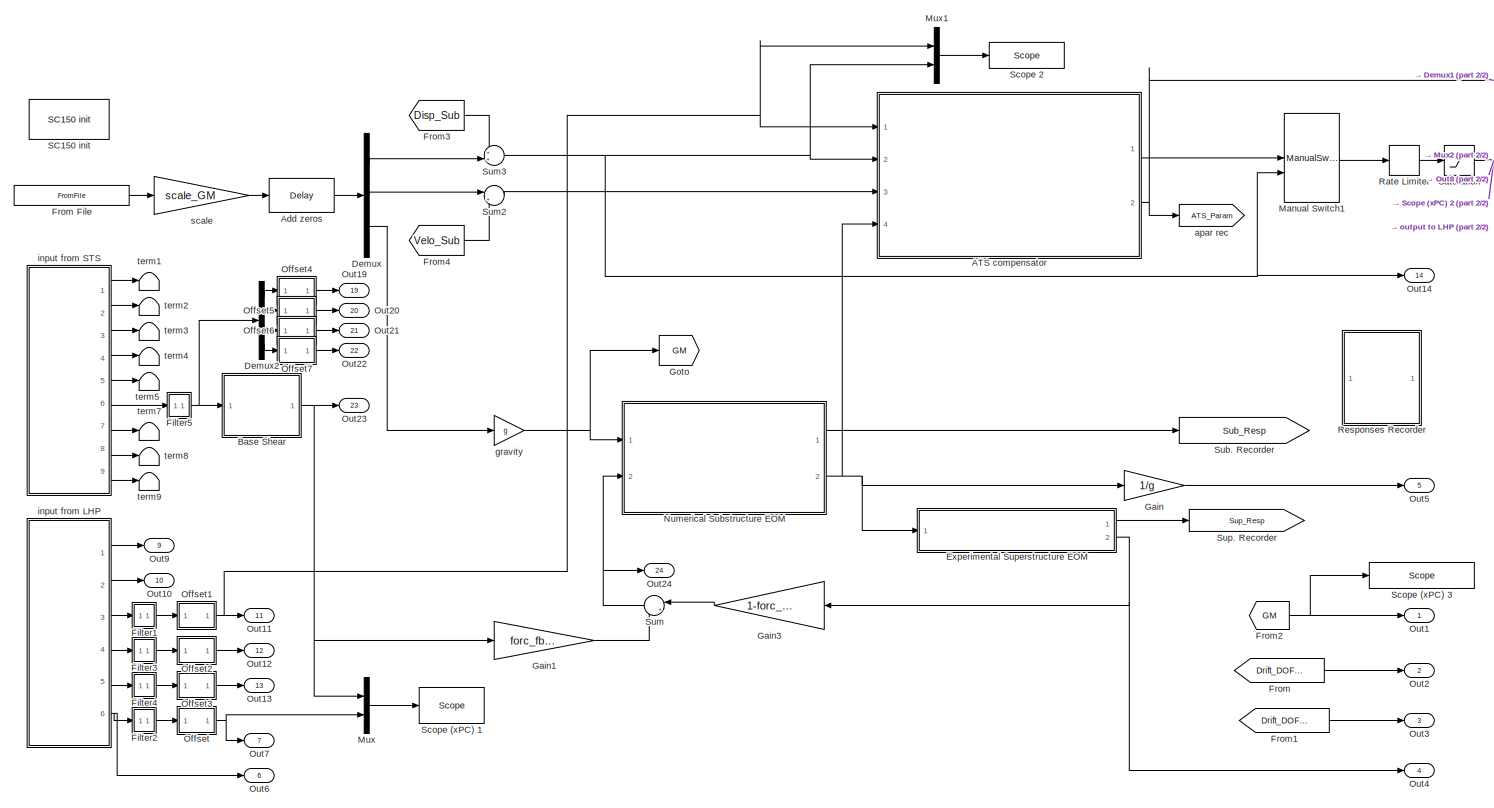
[diagram: root canvas - part 1/2, most of the canvas]
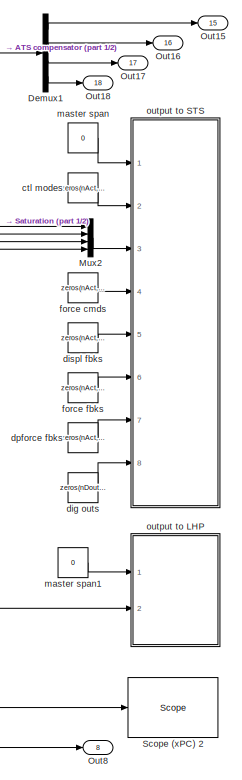
[diagram: root canvas - part 2/2, right side, full height]
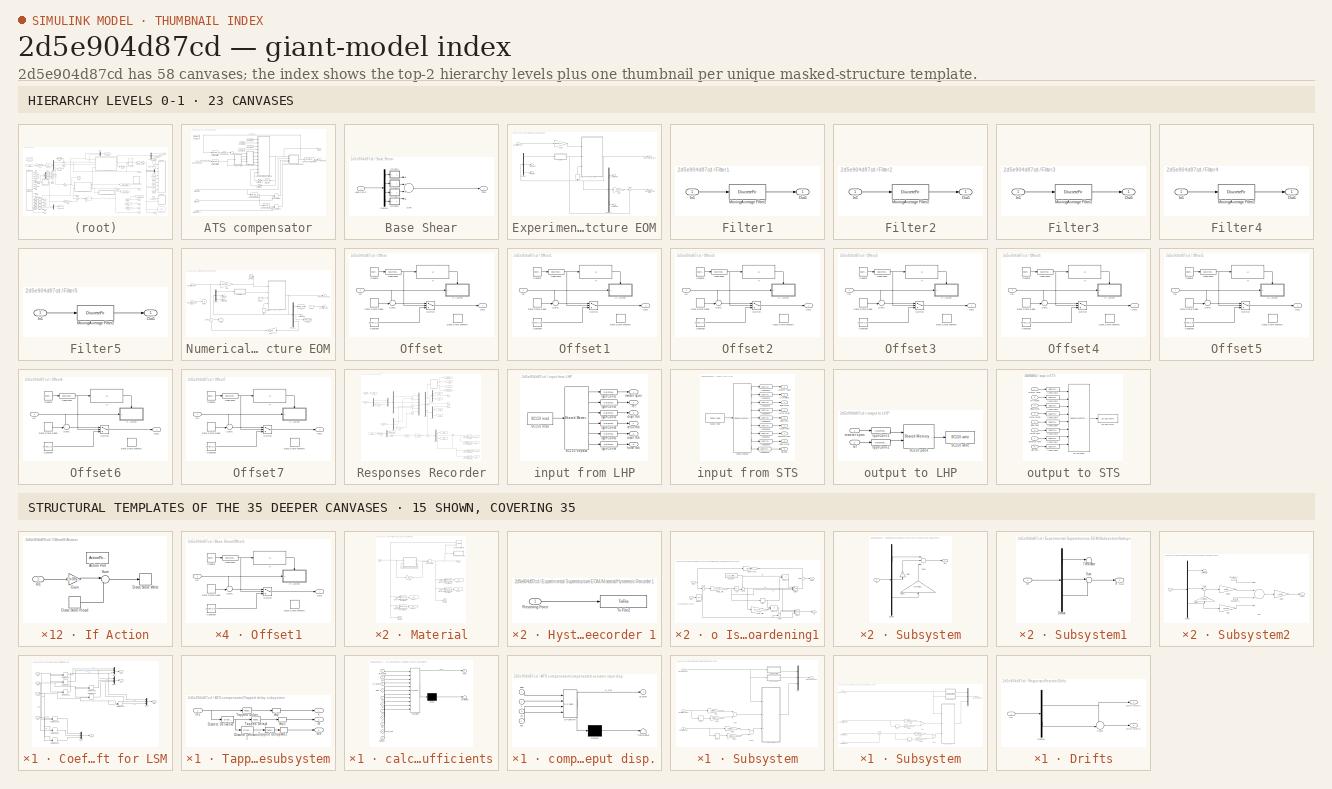
[diagram: thumbnail index - top-2 hierarchy levels (23 canvases) + 15 structural-template representatives of the remaining 35 canvases]
MODEL slx_2d5e904d87cd
KIND model
CONFIG AbsTol = auto
CONFIG FixedStep = samplePeriod
CONFIG MaxStep = auto
CONFIG MinStep = auto
CONFIG PreLoadFcn = initialize;\nscramInitialize;\nKR_alpha;\nDiscrete_Compensator;\nATS_setup
CONFIG RelTol = 1e-3
CONFIG SampleTimeConstraint = Unconstrained
CONFIG Solver = FixedStepDiscrete
CONFIG SolverMode = Auto
CONFIG SolverName = FixedStepDiscrete
CONFIG StartTime = 0.0
CONFIG StopTime = 44.14
BLOCK [SubSystem] ATS compensator
  Ports = [4, 2]
  RequestExecContextInheritance = off
  Variant = off
BLOCK [DiscreteTransferFcn] ATS compensator/Butterworth filter
  Denominator = Zden
  InputPortMap = u0
  Numerator = Znum
  Ports = [1, 1]
  SampleTime = sample
BLOCK [DiscreteTransferFcn] ATS compensator/Butterworth filter1
  Denominator = Zden
  InputPortMap = u0
  Numerator = Znum
  Ports = [1, 1]
  SampleTime = sample
BLOCK [SubSystem] ATS compensator/Coefficient for LSM
  Ports = [4, 4]
  RequestExecContextInheritance = off
  Variant = off
BLOCK [DotProduct] ATS compensator/Coefficient for LSM/Dot Product
  OutDataTypeStr = Inherit: Inherit via internal rule
BLOCK [DotProduct] ATS compensator/Coefficient for LSM/Dot Product1
  OutDataTypeStr = Inherit: Inherit via internal rule
BLOCK [DotProduct] ATS compensator/Coefficient for LSM/Dot Product10
  OutDataTypeStr = Inherit: Inherit via internal rule
BLOCK [DotProduct] ATS compensator/Coefficient for LSM/Dot Product11
  OutDataTypeStr = Inherit: Inherit via internal rule
BLOCK [DotProduct] ATS compensator/Coefficient for LSM/Dot Product12
  OutDataTypeStr = Inherit: Inherit via internal rule
BLOCK [DotProduct] ATS compensator/Coefficient for LSM/Dot Product2
  OutDataTypeStr = Inherit: Inherit via internal rule
BLOCK [DotProduct] ATS compensator/Coefficient for LSM/Dot Product4
  OutDataTypeStr = Inherit: Inherit via internal rule
BLOCK [DotProduct] ATS compensator/Coefficient for LSM/Dot Product5
  OutDataTypeStr = Inherit: Inherit via internal rule
BLOCK [DotProduct] ATS compensator/Coefficient for LSM/Dot Product7
  OutDataTypeStr = Inherit: Inherit via internal rule
BLOCK [Mux] ATS compensator/Coefficient for LSM/Mux
  DisplayOption = bar
  Inputs = 3
  Ports = [3, 1]
BLOCK [Mux] ATS compensator/Coefficient for LSM/Mux1
  DisplayOption = bar
  Inputs = 3
  Ports = [3, 1]
BLOCK [Mux] ATS compensator/Coefficient for LSM/Mux2
  DisplayOption = bar
  Inputs = 3
  Ports = [3, 1]
BLOCK [Mux] ATS compensator/Coefficient for LSM/Mux4
  DisplayOption = bar
  Inputs = 3
  Ports = [3, 1]
BLOCK [Outport] ATS compensator/Coefficient for LSM/X(1,:)
  IconDisplay = Port number
BLOCK [Outport] ATS compensator/Coefficient for LSM/X(2,:)
  IconDisplay = Port number
  Port = 2
BLOCK [Outport] ATS compensator/Coefficient for LSM/X(3,:)
  IconDisplay = Port number
  Port = 3
BLOCK [Outport] ATS compensator/Coefficient for LSM/Y
  IconDisplay = Port number
  Port = 4
BLOCK [Inport] ATS compensator/Coefficient for LSM/um
  IconDisplay = Port number
BLOCK [Inport] ATS compensator/Coefficient for LSM/x2dm
  IconDisplay = Port number
  Port = 4
BLOCK [Inport] ATS compensator/Coefficient for LSM/xdm
  IconDisplay = Port number
  Port = 3
BLOCK [Inport] ATS compensator/Coefficient for LSM/xm
  IconDisplay = Port number
  Port = 2
BLOCK [Constant] ATS compensator/Constant1
  Value = param
BLOCK [Constant] ATS compensator/Constant2
  Value = P_range
BLOCK [Constant] ATS compensator/Constant3
  Value = Threshold
BLOCK [Constant] ATS compensator/Constant4
  Value = MRC
BLOCK [Reference] ATS compensator/Discrete Derivative  REF=simulink/Discrete/Discrete Derivative
  Ports = [1, 1]
  SourceBlock = simulink/Discrete/Discrete Derivative
  SourceType = Discrete Derivative
BLOCK [Reference] ATS compensator/Discrete Derivative1  REF=simulink/Discrete/Discrete Derivative
  Ports = [1, 1]
  SourceBlock = simulink/Discrete/Discrete Derivative
  SourceType = Discrete Derivative
BLOCK [ForEach] ATS compensator/For Each
  DisableCoverage = on
  IndexMode = One-based
  IterateSubsysMaskParameter = on
  Ports = []
  SubsysMaskParameterIterationDimension = 2
BLOCK [ManualSwitch] ATS compensator/Manual Switch
  CurrentSetting = 0
BLOCK [ManualSwitch] ATS compensator/Manual Switch1
  CurrentSetting = 0
BLOCK [DiscreteFir] ATS compensator/MovingAverage Filter2
  Coefficients = 1/numSample*ones(1,numSample)
  InputPortMap = u0
  OutputPortMap = o0
  Ports = [1, 1]
BLOCK [Selector] ATS compensator/Selector
  IndexOptions = Index vector (dialog)
  Indices = 4
  InputPortWidth = 4
  OutputSizes = 1
  Ports = [1, 1]
BLOCK [Reference] ATS compensator/Tapped Delay  REF=simulink/Discrete/Tapped Delay
  Ports = [1, 1]
  SourceBlock = simulink/Discrete/Tapped Delay
  SourceType = Tapped Delay Line
BLOCK [SubSystem] ATS compensator/Tapped delay subsystem
  Ports = [1, 3]
  RequestExecContextInheritance = off
  Variant = off
BLOCK [Reference] ATS compensator/Tapped delay subsystem/Discrete Derivative  REF=simulink/Discrete/Discrete Derivative
  Ports = [1, 1]
  SourceBlock = simulink/Discrete/Discrete Derivative
  SourceType = Discrete Derivative
BLOCK [Reference] ATS compensator/Tapped delay subsystem/Discrete Derivative1  REF=simulink/Discrete/Discrete Derivative
  Ports = [1, 1]
  SourceBlock = simulink/Discrete/Discrete Derivative
  SourceType = Discrete Derivative
BLOCK [Inport] ATS compensator/Tapped delay subsystem/In1
  IconDisplay = Port number
BLOCK [Reference] ATS compensator/Tapped delay subsystem/Tapped Delay  REF=simulink/Discrete/Tapped Delay
  Ports = [1, 1]
  SourceBlock = simulink/Discrete/Tapped Delay
  SourceType = Tapped Delay Line
BLOCK [Reference] ATS compensator/Tapped delay subsystem/Tapped Delay1  REF=simulink/Discrete/Tapped Delay
  Ports = [1, 1]
  SourceBlock = simulink/Discrete/Tapped Delay
  SourceType = Tapped Delay Line
BLOCK [Reference] ATS compensator/Tapped delay subsystem/Tapped Delay2  REF=simulink/Discrete/Tapped Delay
  Ports = [1, 1]
  SourceBlock = simulink/Discrete/Tapped Delay
  SourceType = Tapped Delay Line
BLOCK [Selector] ATS compensator/Tapped delay subsystem/skip
  IndexOptions = Index vector (dialog)
  Indices = [1:SN:Nl]
  InputPortWidth = Nl
  OutputSizes = 1
  Ports = [1, 1]
BLOCK [Selector] ATS compensator/Tapped delay subsystem/skip1
  IndexOptions = Index vector (dialog)
  Indices = [1:SN:Nl]
  InputPortWidth = Nl
  OutputSizes = 1
  Ports = [1, 1]
BLOCK [Selector] ATS compensator/Tapped delay subsystem/skip2
  IndexOptions = Index vector (dialog)
  Indices = [1:SN:Nl]
  InputPortWidth = Nl
  OutputSizes = 1
  Ports = [1, 1]
BLOCK [Outport] ATS compensator/Tapped delay subsystem/x
  IconDisplay = Port number
BLOCK [Outport] ATS compensator/Tapped delay subsystem/x2d
  IconDisplay = Port number
  Port = 3
BLOCK [Outport] ATS compensator/Tapped delay subsystem/xd
  IconDisplay = Port number
  Port = 2
BLOCK [UnitDelay] ATS compensator/Unit Delay
  SampleTime = -1
BLOCK [UnitDelay] ATS compensator/Unit Delay1
  InputProcessing = Elements as channels (sample based)
  SampleTime = -1
BLOCK [Outport] ATS compensator/apar
  ConcatenationDimension = 1
  IconDisplay = Port number
  Port = 2
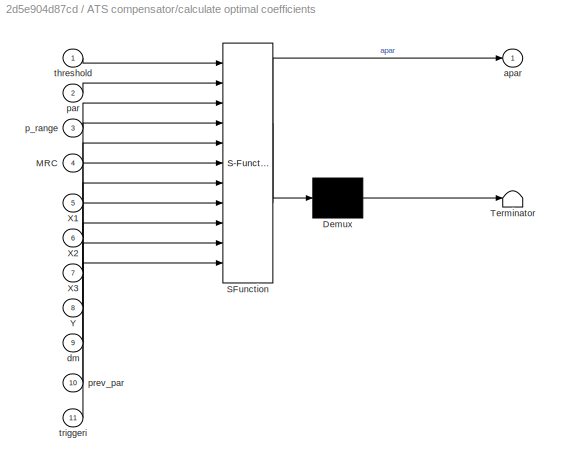
BLOCK [SubSystem] ATS compensator/calculate optimal coefficients
  ErrorFcn = Stateflow.Translate.translate
  PermitHierarchicalResolution = ExplicitOnly
  Ports = [11, 1]
  RequestExecContextInheritance = off
  SFBlockType = MATLAB Function
  TreatAsAtomicUnit = on
  Variant = off
BLOCK [Demux] ATS compensator/calculate optimal coefficients/ Demux 
  Outputs = 1
  Ports = [1, 1]
BLOCK [S-Function] ATS compensator/calculate optimal coefficients/ SFunction 
  EnableBusSupport = on
  FunctionName = sf_sfun
  PortCounts = [11 2]
  Ports = [11, 2]
  SFunctionDeploymentMode = off
  Tag = Stateflow S-Function RT_TestMV_ATS 14
BLOCK [Terminator] ATS compensator/calculate optimal coefficients/ Terminator 
BLOCK [Inport] ATS compensator/calculate optimal coefficients/MRC
  IconDisplay = Port number
  Port = 4
BLOCK [Inport] ATS compensator/calculate optimal coefficients/X1
  IconDisplay = Port number
  Port = 5
BLOCK [Inport] ATS compensator/calculate optimal coefficients/X2
  IconDisplay = Port number
  Port = 6
BLOCK [Inport] ATS compensator/calculate optimal coefficients/X3
  IconDisplay = Port number
  Port = 7
BLOCK [Inport] ATS compensator/calculate optimal coefficients/Y
  IconDisplay = Port number
  Port = 8
BLOCK [Outport] ATS compensator/calculate optimal coefficients/apar
  IconDisplay = Port number
BLOCK [Inport] ATS compensator/calculate optimal coefficients/dm
  IconDisplay = Port number
  Port = 9
BLOCK [Inport] ATS compensator/calculate optimal coefficients/p_range
  IconDisplay = Port number
  Port = 3
BLOCK [Inport] ATS compensator/calculate optimal coefficients/par
  IconDisplay = Port number
  Port = 2
BLOCK [Inport] ATS compensator/calculate optimal coefficients/prev_par
  IconDisplay = Port number
  Port = 10
BLOCK [Inport] ATS compensator/calculate optimal coefficients/threshold
  IconDisplay = Port number
BLOCK [Inport] ATS compensator/calculate optimal coefficients/triggeri
  IconDisplay = Port number
  Port = 11
BLOCK [SubSystem] ATS compensator/compensated actuator input disp.
  ErrorFcn = Stateflow.Translate.translate
  PermitHierarchicalResolution = ExplicitOnly
  Ports = [4, 1]
  RequestExecContextInheritance = off
  SFBlockType = MATLAB Function
  TreatAsAtomicUnit = on
  Variant = off
BLOCK [Demux] ATS compensator/compensated actuator input disp./ Demux 
  Outputs = 1
  Ports = [1, 1]
BLOCK [S-Function] ATS compensator/compensated actuator input disp./ SFunction 
  EnableBusSupport = on
  FunctionName = sf_sfun
  PortCounts = [4 2]
  Ports = [4, 2]
  SFunctionDeploymentMode = off
  Tag = Stateflow S-Function RT_TestMV_ATS 15
BLOCK [Terminator] ATS compensator/compensated actuator input disp./ Terminator 
BLOCK [Inport] ATS compensator/compensated actuator input disp./apar
  IconDisplay = Port number
BLOCK [Outport] ATS compensator/compensated actuator input disp./ut_pred
  IconDisplay = Port number
BLOCK [Inport] ATS compensator/compensated actuator input disp./x
  IconDisplay = Port number
  Port = 2
BLOCK [Inport] ATS compensator/compensated actuator input disp./x2d
  IconDisplay = Port number
  Port = 4
BLOCK [Inport] ATS compensator/compensated actuator input disp./xd
  IconDisplay = Port number
  Port = 3
BLOCK [Outport] ATS compensator/compensated disp
  ConcatenationDimension = 1
  IconDisplay = Port number
BLOCK [Inport] ATS compensator/measured disp
  IconDisplay = Port number
  Partition = on
  PartitionDimension = 1
  PartitionWidth = 1
BLOCK [Selector] ATS compensator/skip
  IndexOptions = Index vector (dialog)
  Indices = [1:SN:Nl]
  InputPortWidth = Nl
  OutputSizes = 1
  Ports = [1, 1]
BLOCK [Inport] ATS compensator/target accel
  IconDisplay = Port number
  Partition = on
  PartitionDimension = 1
  PartitionWidth = 1
  Port = 4
BLOCK [Inport] ATS compensator/target disp
  IconDisplay = Port number
  Partition = on
  PartitionDimension = 1
  PartitionWidth = 1
  Port = 2
BLOCK [Inport] ATS compensator/target vel
  IconDisplay = Port number
  Partition = on
  PartitionDimension = 1
  PartitionWidth = 1
  Port = 3
BLOCK [Delay] Add zeros
  DelayLength = onesec
  InitialCondition = 0
  InputPortMap = u0
  Ports = [1, 1]
BLOCK [SubSystem] Base Shear
  Ports = [1, 1]
  RequestExecContextInheritance = off
  Variant = off
BLOCK [Demux] Base Shear/Demux
  DisplayOption = bar
  Ports = [1, 4]
BLOCK [Inport] Base Shear/Load Cells
  IconDisplay = Port number
BLOCK [SubSystem] Base Shear/Offset1
  Ports = [1, 1]
  RequestExecContextInheritance = off
  Variant = off
BLOCK [Constant] Base Shear/Offset1/Constant
  Value = zeros(1,nS)
BLOCK [Reference] Base Shear/Offset1/Counter  REF=simulink/Sources/Counter
Free-Running
  Ports = [0, 1]
  SourceBlock = simulink/Sources/Counter\nFree-Running
  SourceType = Counter Free-Running
BLOCK [DataStoreMemory] Base Shear/Offset1/Data Store Memory
  DataStoreName = x0
  InitialValue = zeros(1,nS)
  OutDataTypeStr = double
  SignalType = real
BLOCK [DataStoreRead] Base Shear/Offset1/Data Store Read
  DataStoreName = x0
  Ports = [0, 1]
  SampleTime = controlPeriod
BLOCK [If] Base Shear/Offset1/If
  IfExpression = u1 < nOffset
  Ports = [1, 1]
  ShowElse = off
BLOCK [SubSystem] Base Shear/Offset1/If Action
  Ports = [1, 0, 0, 0, 0, 0, 0, 1]
  RequestExecContextInheritance = off
  TreatAsAtomicUnit = on
  Variant = off
BLOCK [ActionPort] Base Shear/Offset1/If Action/Action Port
  ActionType = then
  PropagateVarSize = During execution
BLOCK [DataStoreRead] Base Shear/Offset1/If Action/Data Store Read
  DataStoreName = x0
  Ports = [0, 1]
  SampleTime = controlPeriod
BLOCK [DataStoreWrite] Base Shear/Offset1/If Action/Data Store Write
  DataStoreName = x0
  Ports = [1]
BLOCK [Gain] Base Shear/Offset1/If Action/Gain
  Gain = 1/nOffset
BLOCK [Inport] Base Shear/Offset1/If Action/In1
  IconDisplay = Port number
BLOCK [Sum] Base Shear/Offset1/If Action/Sum
  IconShape = round
  Inputs = |++
  Ports = [2, 1]
BLOCK [Inport] Base Shear/Offset1/In1
  IconDisplay = Port number
BLOCK [Outport] Base Shear/Offset1/Out1
  IconDisplay = Port number
BLOCK [Sum] Base Shear/Offset1/Sum1
  IconShape = round
  Inputs = +-|
  Ports = [2, 1]
BLOCK [Switch] Base Shear/Offset1/Switch
  Threshold = nOffset
BLOCK [DataTypeConversion] Base Shear/Offset1/typeConv2
  OutDataTypeStr = double
BLOCK [SubSystem] Base Shear/Offset2
  Ports = [1, 1]
  RequestExecContextInheritance = off
  Variant = off
BLOCK [Constant] Base Shear/Offset2/Constant
  Value = zeros(1,nS)
BLOCK [Reference] Base Shear/Offset2/Counter  REF=simulink/Sources/Counter
Free-Running
  Ports = [0, 1]
  SourceBlock = simulink/Sources/Counter\nFree-Running
  SourceType = Counter Free-Running
BLOCK [DataStoreMemory] Base Shear/Offset2/Data Store Memory
  DataStoreName = x0
  InitialValue = zeros(1,nS)
  OutDataTypeStr = double
  SignalType = real
BLOCK [DataStoreRead] Base Shear/Offset2/Data Store Read
  DataStoreName = x0
  Ports = [0, 1]
  SampleTime = controlPeriod
BLOCK [If] Base Shear/Offset2/If
  IfExpression = u1 < nOffset
  Ports = [1, 1]
  ShowElse = off
BLOCK [SubSystem] Base Shear/Offset2/If Action
  Ports = [1, 0, 0, 0, 0, 0, 0, 1]
  RequestExecContextInheritance = off
  TreatAsAtomicUnit = on
  Variant = off
BLOCK [ActionPort] Base Shear/Offset2/If Action/Action Port
  ActionType = then
  PropagateVarSize = During execution
BLOCK [DataStoreRead] Base Shear/Offset2/If Action/Data Store Read
  DataStoreName = x0
  Ports = [0, 1]
  SampleTime = controlPeriod
BLOCK [DataStoreWrite] Base Shear/Offset2/If Action/Data Store Write
  DataStoreName = x0
  Ports = [1]
BLOCK [Gain] Base Shear/Offset2/If Action/Gain
  Gain = 1/nOffset
BLOCK [Inport] Base Shear/Offset2/If Action/In1
  IconDisplay = Port number
BLOCK [Sum] Base Shear/Offset2/If Action/Sum
  IconShape = round
  Inputs = |++
  Ports = [2, 1]
BLOCK [Inport] Base Shear/Offset2/In1
  IconDisplay = Port number
BLOCK [Outport] Base Shear/Offset2/Out1
  IconDisplay = Port number
BLOCK [Sum] Base Shear/Offset2/Sum1
  IconShape = round
  Inputs = +-|
  Ports = [2, 1]
BLOCK [Switch] Base Shear/Offset2/Switch
  Threshold = nOffset
BLOCK [DataTypeConversion] Base Shear/Offset2/typeConv2
  OutDataTypeStr = double
BLOCK [SubSystem] Base Shear/Offset3
  Ports = [1, 1]
  RequestExecContextInheritance = off
  Variant = off
BLOCK [Constant] Base Shear/Offset3/Constant
  Value = zeros(1,nS)
BLOCK [Reference] Base Shear/Offset3/Counter  REF=simulink/Sources/Counter
Free-Running
  Ports = [0, 1]
  SourceBlock = simulink/Sources/Counter\nFree-Running
  SourceType = Counter Free-Running
BLOCK [DataStoreMemory] Base Shear/Offset3/Data Store Memory
  DataStoreName = x0
  InitialValue = zeros(1,nS)
  OutDataTypeStr = double
  SignalType = real
BLOCK [DataStoreRead] Base Shear/Offset3/Data Store Read
  DataStoreName = x0
  Ports = [0, 1]
  SampleTime = controlPeriod
BLOCK [If] Base Shear/Offset3/If
  IfExpression = u1 < nOffset
  Ports = [1, 1]
  ShowElse = off
BLOCK [SubSystem] Base Shear/Offset3/If Action
  Ports = [1, 0, 0, 0, 0, 0, 0, 1]
  RequestExecContextInheritance = off
  TreatAsAtomicUnit = on
  Variant = off
BLOCK [ActionPort] Base Shear/Offset3/If Action/Action Port
  ActionType = then
  PropagateVarSize = During execution
BLOCK [DataStoreRead] Base Shear/Offset3/If Action/Data Store Read
  DataStoreName = x0
  Ports = [0, 1]
  SampleTime = controlPeriod
BLOCK [DataStoreWrite] Base Shear/Offset3/If Action/Data Store Write
  DataStoreName = x0
  Ports = [1]
BLOCK [Gain] Base Shear/Offset3/If Action/Gain
  Gain = 1/nOffset
BLOCK [Inport] Base Shear/Offset3/If Action/In1
  IconDisplay = Port number
BLOCK [Sum] Base Shear/Offset3/If Action/Sum
  IconShape = round
  Inputs = |++
  Ports = [2, 1]
BLOCK [Inport] Base Shear/Offset3/In1
  IconDisplay = Port number
BLOCK [Outport] Base Shear/Offset3/Out1
  IconDisplay = Port number
BLOCK [Sum] Base Shear/Offset3/Sum1
  IconShape = round
  Inputs = +-|
  Ports = [2, 1]
BLOCK [Switch] Base Shear/Offset3/Switch
  Threshold = nOffset
BLOCK [DataTypeConversion] Base Shear/Offset3/typeConv2
  OutDataTypeStr = double
BLOCK [SubSystem] Base Shear/Offset4
  Ports = [1, 1]
  RequestExecContextInheritance = off
  Variant = off
BLOCK [Constant] Base Shear/Offset4/Constant
  Value = zeros(1,nS)
BLOCK [Reference] Base Shear/Offset4/Counter  REF=simulink/Sources/Counter
Free-Running
  Ports = [0, 1]
  SourceBlock = simulink/Sources/Counter\nFree-Running
  SourceType = Counter Free-Running
BLOCK [DataStoreMemory] Base Shear/Offset4/Data Store Memory
  DataStoreName = x0
  InitialValue = zeros(1,nS)
  OutDataTypeStr = double
  SignalType = real
BLOCK [DataStoreRead] Base Shear/Offset4/Data Store Read
  DataStoreName = x0
  Ports = [0, 1]
  SampleTime = controlPeriod
BLOCK [If] Base Shear/Offset4/If
  IfExpression = u1 < nOffset
  Ports = [1, 1]
  ShowElse = off
BLOCK [SubSystem] Base Shear/Offset4/If Action
  Ports = [1, 0, 0, 0, 0, 0, 0, 1]
  RequestExecContextInheritance = off
  TreatAsAtomicUnit = on
  Variant = off
BLOCK [ActionPort] Base Shear/Offset4/If Action/Action Port
  ActionType = then
  PropagateVarSize = During execution
BLOCK [DataStoreRead] Base Shear/Offset4/If Action/Data Store Read
  DataStoreName = x0
  Ports = [0, 1]
  SampleTime = controlPeriod
BLOCK [DataStoreWrite] Base Shear/Offset4/If Action/Data Store Write
  DataStoreName = x0
  Ports = [1]
BLOCK [Gain] Base Shear/Offset4/If Action/Gain
  Gain = 1/nOffset
BLOCK [Inport] Base Shear/Offset4/If Action/In1
  IconDisplay = Port number
BLOCK [Sum] Base Shear/Offset4/If Action/Sum
  IconShape = round
  Inputs = |++
  Ports = [2, 1]
BLOCK [Inport] Base Shear/Offset4/In1
  IconDisplay = Port number
BLOCK [Outport] Base Shear/Offset4/Out1
  IconDisplay = Port number
BLOCK [Sum] Base Shear/Offset4/Sum1
  IconShape = round
  Inputs = +-|
  Ports = [2, 1]
BLOCK [Switch] Base Shear/Offset4/Switch
  Threshold = nOffset
BLOCK [DataTypeConversion] Base Shear/Offset4/typeConv2
  OutDataTypeStr = double
BLOCK [Sum] Base Shear/Sum
  InputSameDT = off
  Inputs = ++++
  OutDataTypeStr = Inherit: Inherit via internal rule
  Ports = [4, 1]
  SaturateOnIntegerOverflow = off
BLOCK [Outport] Base Shear/Total
  IconDisplay = Port number
BLOCK [Demux] Demux
  DisplayOption = bar
  Outputs = 3
  Ports = [1, 3]
BLOCK [Demux] Demux1
  DisplayOption = bar
  Ports = [1, 4]
BLOCK [Demux] Demux2
  DisplayOption = bar
  Ports = [1, 4]
BLOCK [SubSystem] Experimental Superstructure EOM
  Ports = [1, 2]
  RequestExecContextInheritance = off
  Variant = off
BLOCK [Delay] Experimental Superstructure EOM/Delay1
  DelayLength = 1
  InputPortMap = u0
  Ports = [1, 1]
BLOCK [Demux] Experimental Superstructure EOM/Demux
  DisplayOption = bar
  Outputs = 3
  Ports = [1, 3]
BLOCK [Demux] Experimental Superstructure EOM/Demux1
  DisplayOption = bar
  Outputs = 3
  Ports = [1, 3]
BLOCK [Inport] Experimental Superstructure EOM/Excitation Sup.
  IconDisplay = Port number
BLOCK [Gain] Experimental Superstructure EOM/Gain
  Gain = Csup
  Multiplication = Matrix(K*u) (u vector)
  OutDataTypeStr = Inherit: Inherit via internal rule
  ParamDataTypeStr = Inherit: Inherit via internal rule
  SaturateOnIntegerOverflow = off
BLOCK [Gain] Experimental Superstructure EOM/Gain2
  Gain = -Msup*a_sup
  Multiplication = Matrix(K*u)
  OutDataTypeStr = Inherit: Inherit via internal rule
  ParamDataTypeStr = Inherit: Inherit via internal rule
  SaturateOnIntegerOverflow = off
BLOCK [SubSystem] Experimental Superstructure EOM/Material
  Ports = [1, 1]
  RequestExecContextInheritance = off
  Variant = off
BLOCK [Reference] Experimental Superstructure EOM/Material/DOF 2 (Experimental)  REF=simulink/Sinks/XY Graph
  Ports = [2]
  SourceBlock = simulink/Sinks/XY Graph
  SourceType = XY scope.
BLOCK [Inport] Experimental Superstructure EOM/Material/Disp
  IconDisplay = Port number
BLOCK [Display] Experimental Superstructure EOM/Material/Display
  Decimation = 1
  Ports = [1]
BLOCK [Display] Experimental Superstructure EOM/Material/Display1
  Decimation = 1
  Ports = [1]
BLOCK [Display] Experimental Superstructure EOM/Material/Display2
  Decimation = 1
  Ports = [1]
BLOCK [Display] Experimental Superstructure EOM/Material/Display3
  Decimation = 1
  Ports = [1]
BLOCK [Outport] Experimental Superstructure EOM/Material/Force
  IconDisplay = Port number
BLOCK [Gain] Experimental Superstructure EOM/Material/Gain
  Gain = K2
  Multiplication = Matrix(K*u) (u vector)
  OutDataTypeStr = Inherit: Inherit via internal rule
  ParamDataTypeStr = Inherit: Inherit via internal rule
  SaturateOnIntegerOverflow = off
BLOCK [Ground] Experimental Superstructure EOM/Material/Ground
BLOCK [Ground] Experimental Superstructure EOM/Material/Ground1
BLOCK [Ground] Experimental Superstructure EOM/Material/Ground2
BLOCK [Ground] Experimental Superstructure EOM/Material/Ground3
BLOCK [SubSystem] Experimental Superstructure EOM/Material/Hysteresis Recorder 1
  Ports = [1]
  RequestExecContextInheritance = off
  Variant = off
BLOCK [Inport] Experimental Superstructure EOM/Material/Hysteresis Recorder 1/Restoring Force
  IconDisplay = Port number
BLOCK [ToFile] Experimental Superstructure EOM/Material/Hysteresis Recorder 1/To File2
  Filename = Restoring_DOF2.mat
  MatrixName = Restoring_DOF2
  Ports = [1]
BLOCK [SubSystem] Experimental Superstructure EOM/Material/Hysteretic w//o Isotropic Hardening1
  Ports = [2, 2]
  RequestExecContextInheritance = off
  Variant = off
BLOCK [Abs] Experimental Superstructure EOM/Material/Hysteretic w//o Isotropic Hardening1/Abs
BLOCK [Constant] Experimental Superstructure EOM/Material/Hysteretic w//o Isotropic Hardening1/Constant
  Value = (1-a_ratio)*K1*uy
BLOCK [Inport] Experimental Superstructure EOM/Material/Hysteretic w//o Isotropic Hardening1/Disp
  IconDisplay = Port number
BLOCK [Gain] Experimental Superstructure EOM/Material/Hysteretic w//o Isotropic Hardening1/Elastic_Force
  Gain = a_ratio*K1
BLOCK [Outport] Experimental Superstructure EOM/Material/Hysteretic w//o Isotropic Hardening1/Force
  IconDisplay = Port number
BLOCK [Gain] Experimental Superstructure EOM/Material/Hysteretic w//o Isotropic Hardening1/Plastic_Stiff
  Gain = (1-a_ratio)*K1
BLOCK [Gain] Experimental Superstructure EOM/Material/Hysteretic w//o Isotropic Hardening1/Plastic_Stiff1
  Gain = 1/((1-a_ratio)*K1)
BLOCK [Product] Experimental Superstructure EOM/Material/Hysteretic w//o Isotropic Hardening1/Product
  InputSameDT = off
  Ports = [2, 1]
  RndMeth = Floor
BLOCK [Product] Experimental Superstructure EOM/Material/Hysteretic w//o Isotropic Hardening1/Product1
  InputSameDT = off
  Ports = [2, 1]
  RndMeth = Floor
BLOCK [Signum] Experimental Superstructure EOM/Material/Hysteretic w//o Isotropic Hardening1/Sign
BLOCK [Sum] Experimental Superstructure EOM/Material/Hysteretic w//o Isotropic Hardening1/Sum
  IconShape = round
  Inputs = +|+
  Ports = [2, 1]
BLOCK [Sum] Experimental Superstructure EOM/Material/Hysteretic w//o Isotropic Hardening1/Sum1
  IconShape = round
  InputSameDT = off
  Inputs = |+-
  OutDataTypeStr = Inherit: Inherit via internal rule
  Ports = [2, 1]
BLOCK [Sum] Experimental Superstructure EOM/Material/Hysteretic w//o Isotropic Hardening1/Sum2
  IconShape = round
  InputSameDT = off
  Inputs = -+|
  OutDataTypeStr = Inherit: Inherit via internal rule
  Ports = [2, 1]
BLOCK [Sum] Experimental Superstructure EOM/Material/Hysteretic w//o Isotropic Hardening1/Sum3
  IconShape = round
  InputSameDT = off
  Inputs = ++|
  OutDataTypeStr = Inherit: Inherit via internal rule
  Ports = [2, 1]
BLOCK [Switch] Experimental Superstructure EOM/Material/Hysteretic w//o Isotropic Hardening1/Switch
  Criteria = u2 > Threshold
  InputSameDT = off
BLOCK [Switch] Experimental Superstructure EOM/Material/Hysteretic w//o Isotropic Hardening1/Switch1
  Criteria = u2 > Threshold
  InputSameDT = off
BLOCK [UnitDelay] Experimental Superstructure EOM/Material/Hysteretic w//o Isotropic Hardening1/Unit Delay
  SampleTime = -1
BLOCK [Outport] Experimental Superstructure EOM/Material/Hysteretic w//o Isotropic Hardening1/Up
  IconDisplay = Port number
  Port = 2
BLOCK [Inport] Experimental Superstructure EOM/Material/Hysteretic w//o Isotropic Hardening1/Upi
  IconDisplay = Port number
  Port = 2
BLOCK [ManualSwitch] Experimental Superstructure EOM/Material/Manual Switch
BLOCK [Reference] Experimental Superstructure EOM/Material/MinMax Running Resettable  REF=simulink/Math
Operations/MinMax
Running
Resettable
  Ports = [2, 1]
  SourceBlock = simulink/Math\nOperations/MinMax\nRunning\nResettable
  SourceType = MinMax Running Resettable
BLOCK [Reference] Experimental Superstructure EOM/Material/MinMax Running Resettable1  REF=simulink/Math
Operations/MinMax
Running
Resettable
  Ports = [2, 1]
  SourceBlock = simulink/Math\nOperations/MinMax\nRunning\nResettable
  SourceType = MinMax Running Resettable
BLOCK [Reference] Experimental Superstructure EOM/Material/MinMax Running Resettable2  REF=simulink/Math
Operations/MinMax
Running
Resettable
  Ports = [2, 1]
  SourceBlock = simulink/Math\nOperations/MinMax\nRunning\nResettable
  SourceType = MinMax Running Resettable
BLOCK [Reference] Experimental Superstructure EOM/Material/MinMax Running Resettable3  REF=simulink/Math
Operations/MinMax
Running
Resettable
  Ports = [2, 1]
  SourceBlock = simulink/Math\nOperations/MinMax\nRunning\nResettable
  SourceType = MinMax Running Resettable
BLOCK [Scope] Experimental Superstructure EOM/Material/Scope
  Ports = [1]
  ScopeSpecificationString = Simulink.scopes.TimeScopeBlockCfg('CurrentConfiguration', extmgr.ConfigurationSet(extmgr.Configuration('Core','General UI',true),extmgr.Configuration('Core','Source UI',true),extmgr.Configuration('Sources','WiredSimulink',true,'DataLoggingVariableName','ScopeData3'),extmgr.Configuration('Visuals','Time Domain',true,'SerializedDisplays',{struct('MinYLimReal','-141.09685','MaxYLimReal','138.41407','...<+1440ch>
BLOCK [Scope] Experimental Superstructure EOM/Material/Scope1
  Ports = [1]
  ScopeSpecificationString = Simulink.scopes.TimeScopeBlockCfg('CurrentConfiguration', extmgr.ConfigurationSet(extmgr.Configuration('Core','General UI',true),extmgr.Configuration('Core','Source UI',true),extmgr.Configuration('Sources','WiredSimulink',true,'DataLoggingVariableName','ScopeData4'),extmgr.Configuration('Visuals','Time Domain',true,'SerializedDisplays',{struct('MinYLimReal','-3.56873','MaxYLimReal','3.30618','YLab...<+1393ch>
BLOCK [Outport] Experimental Superstructure EOM/Resisting Force Sup.
  IconDisplay = Port number
  Port = 2
BLOCK [Outport] Experimental Superstructure EOM/Responses Sup.
  IconDisplay = Port number
BLOCK [SubSystem] Experimental Superstructure EOM/Subsystem
  Ports = [3, 1]
  RequestExecContextInheritance = off
  Variant = off
BLOCK [Delay] Experimental Superstructure EOM/Subsystem/Delay
  DelayLength = 1
  InputPortMap = u0
  Ports = [1, 1]
BLOCK [Delay] Experimental Superstructure EOM/Subsystem/Delay1
  DelayLength = 1
  InputPortMap = u0
  Ports = [1, 1]
BLOCK [Inport] Experimental Superstructure EOM/Subsystem/Excitation Force
  IconDisplay = Port number
BLOCK [Gain] Experimental Superstructure EOM/Subsystem/Gain
  Gain = 1-alpha_f_sup
  OutDataTypeStr = Inherit: Inherit via internal rule
  ParamDataTypeStr = Inherit: Inherit via internal rule
  SaturateOnIntegerOverflow = off
BLOCK [Gain] Experimental Superstructure EOM/Subsystem/Gain1
  Gain = alpha_f_sup
  OutDataTypeStr = Inherit: Inherit via internal rule
  ParamDataTypeStr = Inherit: Inherit via internal rule
  SaturateOnIntegerOverflow = off
BLOCK [Gain] Experimental Superstructure EOM/Subsystem/Gain2
  Gain = 1-alpha_f_sup
  OutDataTypeStr = Inherit: Inherit via internal rule
  ParamDataTypeStr = Inherit: Inherit via internal rule
  SaturateOnIntegerOverflow = off
BLOCK [Gain] Experimental Superstructure EOM/Subsystem/Gain3
  Gain = alpha_f_sup
  OutDataTypeStr = Inherit: Inherit via internal rule
  ParamDataTypeStr = Inherit: Inherit via internal rule
  SaturateOnIntegerOverflow = off
BLOCK [Mux] Experimental Superstructure EOM/Subsystem/Mux
  DisplayOption = bar
  Inputs = 3
  Ports = [3, 1]
BLOCK [Inport] Experimental Superstructure EOM/Subsystem/Responses i
  IconDisplay = Port number
  Port = 3
BLOCK [Outport] Experimental Superstructure EOM/Subsystem/Responses i+1
  IconDisplay = Port number
BLOCK [Inport] Experimental Superstructure EOM/Subsystem/Restoring A//E
  IconDisplay = Port number
  Port = 2
BLOCK [SubSystem] Experimental Superstructure EOM/Subsystem/Subsystem
  Ports = [1, 1]
  RequestExecContextInheritance = off
  Variant = off
BLOCK [Demux] Experimental Superstructure EOM/Subsystem/Subsystem/Demux
  DisplayOption = bar
  Outputs = 3
  Ports = [1, 3]
BLOCK [Gain] Experimental Superstructure EOM/Subsystem/Subsystem/Gain
  Gain = dt
  OutDataTypeStr = Inherit: Inherit via internal rule
  ParamDataTypeStr = Inherit: Inherit via internal rule
  SaturateOnIntegerOverflow = off
BLOCK [Gain] Experimental Superstructure EOM/Subsystem/Subsystem/Gain1
  Gain = (0.5+gamma_sup)*dt
  OutDataTypeStr = Inherit: Inherit via internal rule
  ParamDataTypeStr = Inherit: Inherit via internal rule
  SaturateOnIntegerOverflow = off
BLOCK [Inport] Experimental Superstructure EOM/Subsystem/Subsystem/In
  IconDisplay = Port number
BLOCK [Sum] Experimental Superstructure EOM/Subsystem/Subsystem/Sum1
  InputSameDT = off
  Inputs = +++
  OutDataTypeStr = Inherit: Inherit via internal rule
  Ports = [3, 1]
  SaturateOnIntegerOverflow = off
BLOCK [Outport] Experimental Superstructure EOM/Subsystem/Subsystem/X i+1
  IconDisplay = Port number
BLOCK [SubSystem] Experimental Superstructure EOM/Subsystem/Subsystem1
  Ports = [1, 1]
  RequestExecContextInheritance = off
  Variant = off
BLOCK [Demux] Experimental Superstructure EOM/Subsystem/Subsystem1/Demux
  DisplayOption = bar
  Outputs = 3
  Ports = [1, 3]
BLOCK [Inport] Experimental Superstructure EOM/Subsystem/Subsystem1/In
  IconDisplay = Port number
BLOCK [Sum] Experimental Superstructure EOM/Subsystem/Subsystem1/Sum
  IconShape = round
  InputSameDT = off
  Inputs = |++
  OutDataTypeStr = Inherit: Inherit via internal rule
  Ports = [2, 1]
  SaturateOnIntegerOverflow = off
BLOCK [Terminator] Experimental Superstructure EOM/Subsystem/Subsystem1/Terminator
BLOCK [Outport] Experimental Superstructure EOM/Subsystem/Subsystem1/X' i+1
  IconDisplay = Port number
BLOCK [SubSystem] Experimental Superstructure EOM/Subsystem/Subsystem2
  Ports = [3, 1]
  RequestExecContextInheritance = off
  Variant = off
BLOCK [Demux] Experimental Superstructure EOM/Subsystem/Subsystem2/Demux
  DisplayOption = bar
  Outputs = 3
  Ports = [1, 3]
BLOCK [Inport] Experimental Superstructure EOM/Subsystem/Subsystem2/F i+1-alpha_f
  IconDisplay = Port number
  Port = 2
BLOCK [Gain] Experimental Superstructure EOM/Subsystem/Subsystem2/Gain
  Gain = B_sup
  Multiplication = Matrix(K*u) (u vector)
  OutDataTypeStr = Inherit: Inherit via internal rule
  ParamDataTypeStr = Inherit: Inherit via internal rule
  SaturateOnIntegerOverflow = off
BLOCK [Gain] Experimental Superstructure EOM/Subsystem/Subsystem2/Gain1
  Gain = 1-alpha_f_sup
  OutDataTypeStr = Inherit: Inherit via internal rule
  ParamDataTypeStr = Inherit: Inherit via internal rule
  SaturateOnIntegerOverflow = off
BLOCK [Gain] Experimental Superstructure EOM/Subsystem/Subsystem2/Gain2
  Gain = Csup
  Multiplication = Matrix(K*u) (u vector)
  OutDataTypeStr = Inherit: Inherit via internal rule
  ParamDataTypeStr = Inherit: Inherit via internal rule
  SaturateOnIntegerOverflow = off
BLOCK [Gain] Experimental Superstructure EOM/Subsystem/Subsystem2/Gain3
  Gain = A_sup
  Multiplication = Matrix(K*u) (u vector)
  OutDataTypeStr = Inherit: Inherit via internal rule
  ParamDataTypeStr = Inherit: Inherit via internal rule
  SaturateOnIntegerOverflow = off
BLOCK [Inport] Experimental Superstructure EOM/Subsystem/Subsystem2/In
  IconDisplay = Port number
BLOCK [Inport] Experimental Superstructure EOM/Subsystem/Subsystem2/R i+1-alpha_f
  IconDisplay = Port number
  Port = 3
BLOCK [Sum] Experimental Superstructure EOM/Subsystem/Subsystem2/Sum
  InputSameDT = off
  Inputs = +---
  OutDataTypeStr = Inherit: Inherit via internal rule
  Ports = [4, 1]
  SaturateOnIntegerOverflow = off
BLOCK [Sum] Experimental Superstructure EOM/Subsystem/Subsystem2/Sum1
  IconShape = round
  InputSameDT = off
  Inputs = |++
  OutDataTypeStr = Inherit: Inherit via internal rule
  Ports = [2, 1]
  SaturateOnIntegerOverflow = off
BLOCK [Terminator] Experimental Superstructure EOM/Subsystem/Subsystem2/Terminator
BLOCK [Outport] Experimental Superstructure EOM/Subsystem/Subsystem2/X'hat i+1
  IconDisplay = Port number
BLOCK [Sum] Experimental Superstructure EOM/Subsystem/Sum
  InputSameDT = off
  OutDataTypeStr = Inherit: Inherit via internal rule
  Ports = [2, 1]
  SaturateOnIntegerOverflow = off
BLOCK [Sum] Experimental Superstructure EOM/Subsystem/Sum1
  InputSameDT = off
  OutDataTypeStr = Inherit: Inherit via internal rule
  Ports = [2, 1]
  SaturateOnIntegerOverflow = off
BLOCK [Sum] Experimental Superstructure EOM/Sum
  IconShape = round
  InputSameDT = off
  Inputs = |++
  OutDataTypeStr = Inherit: Inherit via internal rule
  Ports = [2, 1]
  SaturateOnIntegerOverflow = off
BLOCK [Terminator] Experimental Superstructure EOM/Terminator
BLOCK [Terminator] Experimental Superstructure EOM/Terminator1
BLOCK [Terminator] Experimental Superstructure EOM/Terminator2
BLOCK [Terminator] Experimental Superstructure EOM/Terminator3
BLOCK [SubSystem] Filter1
  Ports = [1, 1]
  RequestExecContextInheritance = off
  ShowPortLabels = none
  Variant = off
BLOCK [Inport] Filter1/In1
  IconDisplay = Port number
BLOCK [DiscreteFir] Filter1/MovingAverage Filter2
  Coefficients = 1/numSample*ones(1,numSample)
  InputPortMap = u0
  OutputPortMap = o0
  Ports = [1, 1]
BLOCK [Outport] Filter1/Out1
  IconDisplay = Port number
BLOCK [SubSystem] Filter2
  Ports = [1, 1]
  RequestExecContextInheritance = off
  ShowPortLabels = none
  Variant = off
BLOCK [Inport] Filter2/In1
  IconDisplay = Port number
BLOCK [DiscreteFir] Filter2/MovingAverage Filter2
  Coefficients = 1/numSample*ones(1,numSample)
  InputPortMap = u0
  OutputPortMap = o0
  Ports = [1, 1]
BLOCK [Outport] Filter2/Out1
  IconDisplay = Port number
BLOCK [SubSystem] Filter3
  Ports = [1, 1]
  RequestExecContextInheritance = off
  ShowPortLabels = none
  Variant = off
BLOCK [Inport] Filter3/In1
  IconDisplay = Port number
BLOCK [DiscreteFir] Filter3/MovingAverage Filter2
  Coefficients = 1/numSample*ones(1,numSample)
  InputPortMap = u0
  OutputPortMap = o0
  Ports = [1, 1]
BLOCK [Outport] Filter3/Out1
  IconDisplay = Port number
BLOCK [SubSystem] Filter4
  Ports = [1, 1]
  RequestExecContextInheritance = off
  ShowPortLabels = none
  Variant = off
BLOCK [Inport] Filter4/In1
  IconDisplay = Port number
BLOCK [DiscreteFir] Filter4/MovingAverage Filter2
  Coefficients = 1/numSample*ones(1,numSample)
  InputPortMap = u0
  OutputPortMap = o0
  Ports = [1, 1]
BLOCK [Outport] Filter4/Out1
  IconDisplay = Port number
BLOCK [SubSystem] Filter5
  Ports = [1, 1]
  RequestExecContextInheritance = off
  ShowPortLabels = none
  Variant = off
BLOCK [Inport] Filter5/In1
  IconDisplay = Port number
BLOCK [DiscreteFir] Filter5/MovingAverage Filter2
  Coefficients = 1/numSample*ones(1,numSample)
  InputPortMap = u0
  OutputPortMap = o0
  Ports = [1, 1]
BLOCK [Outport] Filter5/Out1
  IconDisplay = Port number
BLOCK [From] From
  GotoTag = Drift_DOF_1
  TagVisibility = global
BLOCK [FromFile] From File
  FileName = lo89_2048Hz_All.mat
  SampleTime = samplePeriod
BLOCK [From] From1
  GotoTag = Drift_DOF_2
  TagVisibility = global
BLOCK [From] From2
  GotoTag = GM
BLOCK [From] From3
  GotoTag = Disp_Sub
  TagVisibility = global
BLOCK [From] From4
  GotoTag = Velo_Sub
  TagVisibility = global
BLOCK [Gain] Gain
  Gain = 1/g
  OutDataTypeStr = Inherit: Inherit via internal rule
  ParamDataTypeStr = Inherit: Inherit via internal rule
  SaturateOnIntegerOverflow = off
BLOCK [Gain] Gain1
  Gain = forc_fbk_gain
  OutDataTypeStr = Inherit: Inherit via internal rule
  ParamDataTypeStr = Inherit: Inherit via internal rule
  SaturateOnIntegerOverflow = off
BLOCK [Gain] Gain3
  Gain = 1-forc_fbk_gain
  OutDataTypeStr = Inherit: Inherit via internal rule
  ParamDataTypeStr = Inherit: Inherit via internal rule
  SaturateOnIntegerOverflow = off
BLOCK [Goto] Goto
  GotoTag = GM
BLOCK [ManualSwitch] Manual Switch1
BLOCK [Mux] Mux
  DisplayOption = bar
  Inputs = 2
  Ports = [2, 1]
BLOCK [Mux] Mux1
  DisplayOption = bar
  Inputs = 2
  Ports = [2, 1]
BLOCK [Mux] Mux2
  DisplayOption = bar
  Ports = [4, 1]
BLOCK [SubSystem] Numerical Substructure EOM
  Ports = [2, 2]
  RequestExecContextInheritance = off
  Variant = off
BLOCK [Delay] Numerical Substructure EOM/Delay1
  DelayLength = 1
  InputPortMap = u0
  Ports = [1, 1]
BLOCK [Demux] Numerical Substructure EOM/Demux
  DisplayOption = bar
  Outputs = 3
  Ports = [1, 3]
BLOCK [Demux] Numerical Substructure EOM/Demux1
  DisplayOption = bar
  Outputs = 3
  Ports = [1, 3]
BLOCK [Inport] Numerical Substructure EOM/Excitation Sub.
  IconDisplay = Port number
BLOCK [Outport] Numerical Substructure EOM/Excitation Sup.
  IconDisplay = Port number
  Port = 2
BLOCK [From] Numerical Substructure EOM/From
BLOCK [From] Numerical Substructure EOM/From1
  GotoTag = B
BLOCK [Gain] Numerical Substructure EOM/Gain
  Gain = -Msub*a_sub
  Multiplication = Matrix(K*u)
  OutDataTypeStr = Inherit: Inherit via internal rule
  ParamDataTypeStr = Inherit: Inherit via internal rule
  SaturateOnIntegerOverflow = off
BLOCK [Gain] Numerical Substructure EOM/Gain1
  Gain = D_sub
  Multiplication = Matrix(K*u) (u vector)
  OutDataTypeStr = Inherit: Inherit via internal rule
  ParamDataTypeStr = Inherit: Inherit via internal rule
  SaturateOnIntegerOverflow = off
BLOCK [Goto] Numerical Substructure EOM/Goto
BLOCK [Goto] Numerical Substructure EOM/Goto1
  GotoTag = B
BLOCK [Goto] Numerical Substructure EOM/Goto2
  GotoTag = Disp_Sub
  TagVisibility = global
BLOCK [Goto] Numerical Substructure EOM/Goto3
  GotoTag = Velo_Sub
  TagVisibility = global
BLOCK [SubSystem] Numerical Substructure EOM/Material
  Ports = [1, 1]
  RequestExecContextInheritance = off
  Variant = off
BLOCK [Reference] Numerical Substructure EOM/Material/DOF 1 (Numerical)  REF=simulink/Sinks/XY Graph
  Ports = [2]
  SourceBlock = simulink/Sinks/XY Graph
  SourceType = XY scope.
BLOCK [Inport] Numerical Substructure EOM/Material/Disp
  IconDisplay = Port number
BLOCK [Display] Numerical Substructure EOM/Material/Display
  Decimation = 1
  Ports = [1]
BLOCK [Display] Numerical Substructure EOM/Material/Display1
  Decimation = 1
  Ports = [1]
BLOCK [Display] Numerical Substructure EOM/Material/Display2
  Decimation = 1
  Ports = [1]
BLOCK [Display] Numerical Substructure EOM/Material/Display3
  Decimation = 1
  Ports = [1]
BLOCK [Outport] Numerical Substructure EOM/Material/Force
  IconDisplay = Port number
BLOCK [Gain] Numerical Substructure EOM/Material/Gain
  Gain = Ksub
  Multiplication = Matrix(K*u) (u vector)
  OutDataTypeStr = Inherit: Inherit via internal rule
  ParamDataTypeStr = Inherit: Inherit via internal rule
  SaturateOnIntegerOverflow = off
BLOCK [Ground] Numerical Substructure EOM/Material/Ground
BLOCK [Ground] Numerical Substructure EOM/Material/Ground1
BLOCK [Ground] Numerical Substructure EOM/Material/Ground2
BLOCK [Ground] Numerical Substructure EOM/Material/Ground3
BLOCK [SubSystem] Numerical Substructure EOM/Material/Hysteresis Recorder 1
  Ports = [1]
  RequestExecContextInheritance = off
  Variant = off
BLOCK [Inport] Numerical Substructure EOM/Material/Hysteresis Recorder 1/Restoring Force
  IconDisplay = Port number
BLOCK [ToFile] Numerical Substructure EOM/Material/Hysteresis Recorder 1/To File2
  Filename = Restoring_DOF1.mat
  MatrixName = Restoring_DOF1
  Ports = [1]
BLOCK [SubSystem] Numerical Substructure EOM/Material/Hysteretic w//o Isotropic Hardening1
  Ports = [2, 2]
  RequestExecContextInheritance = off
  Variant = off
BLOCK [Abs] Numerical Substructure EOM/Material/Hysteretic w//o Isotropic Hardening1/Abs
BLOCK [Constant] Numerical Substructure EOM/Material/Hysteretic w//o Isotropic Hardening1/Constant
  Value = (1-a_ratio)*K1*uy
BLOCK [Inport] Numerical Substructure EOM/Material/Hysteretic w//o Isotropic Hardening1/Disp
  IconDisplay = Port number
BLOCK [Gain] Numerical Substructure EOM/Material/Hysteretic w//o Isotropic Hardening1/Elastic_Force
  Gain = a_ratio*K1
BLOCK [Outport] Numerical Substructure EOM/Material/Hysteretic w//o Isotropic Hardening1/Force
  IconDisplay = Port number
BLOCK [Gain] Numerical Substructure EOM/Material/Hysteretic w//o Isotropic Hardening1/Plastic_Stiff
  Gain = (1-a_ratio)*K1
BLOCK [Gain] Numerical Substructure EOM/Material/Hysteretic w//o Isotropic Hardening1/Plastic_Stiff1
  Gain = 1/((1-a_ratio)*K1)
BLOCK [Product] Numerical Substructure EOM/Material/Hysteretic w//o Isotropic Hardening1/Product
  InputSameDT = off
  Ports = [2, 1]
  RndMeth = Floor
BLOCK [Product] Numerical Substructure EOM/Material/Hysteretic w//o Isotropic Hardening1/Product1
  InputSameDT = off
  Ports = [2, 1]
  RndMeth = Floor
BLOCK [Signum] Numerical Substructure EOM/Material/Hysteretic w//o Isotropic Hardening1/Sign
BLOCK [Sum] Numerical Substructure EOM/Material/Hysteretic w//o Isotropic Hardening1/Sum
  IconShape = round
  Inputs = +|+
  Ports = [2, 1]
BLOCK [Sum] Numerical Substructure EOM/Material/Hysteretic w//o Isotropic Hardening1/Sum1
  IconShape = round
  InputSameDT = off
  Inputs = |+-
  OutDataTypeStr = Inherit: Inherit via internal rule
  Ports = [2, 1]
BLOCK [Sum] Numerical Substructure EOM/Material/Hysteretic w//o Isotropic Hardening1/Sum2
  IconShape = round
  InputSameDT = off
  Inputs = -+|
  OutDataTypeStr = Inherit: Inherit via internal rule
  Ports = [2, 1]
BLOCK [Sum] Numerical Substructure EOM/Material/Hysteretic w//o Isotropic Hardening1/Sum3
  IconShape = round
  InputSameDT = off
  Inputs = ++|
  OutDataTypeStr = Inherit: Inherit via internal rule
  Ports = [2, 1]
BLOCK [Switch] Numerical Substructure EOM/Material/Hysteretic w//o Isotropic Hardening1/Switch
  Criteria = u2 > Threshold
  InputSameDT = off
BLOCK [Switch] Numerical Substructure EOM/Material/Hysteretic w//o Isotropic Hardening1/Switch1
  Criteria = u2 > Threshold
  InputSameDT = off
BLOCK [UnitDelay] Numerical Substructure EOM/Material/Hysteretic w//o Isotropic Hardening1/Unit Delay
  SampleTime = -1
BLOCK [Outport] Numerical Substructure EOM/Material/Hysteretic w//o Isotropic Hardening1/Up
  IconDisplay = Port number
  Port = 2
BLOCK [Inport] Numerical Substructure EOM/Material/Hysteretic w//o Isotropic Hardening1/Upi
  IconDisplay = Port number
  Port = 2
BLOCK [ManualSwitch] Numerical Substructure EOM/Material/Manual Switch
  CurrentSetting = 0
BLOCK [Reference] Numerical Substructure EOM/Material/MinMax Running Resettable  REF=simulink/Math
Operations/MinMax
Running
Resettable
  Ports = [2, 1]
  SourceBlock = simulink/Math\nOperations/MinMax\nRunning\nResettable
  SourceType = MinMax Running Resettable
BLOCK [Reference] Numerical Substructure EOM/Material/MinMax Running Resettable1  REF=simulink/Math
Operations/MinMax
Running
Resettable
  Ports = [2, 1]
  SourceBlock = simulink/Math\nOperations/MinMax\nRunning\nResettable
  SourceType = MinMax Running Resettable
BLOCK [Reference] Numerical Substructure EOM/Material/MinMax Running Resettable2  REF=simulink/Math
Operations/MinMax
Running
Resettable
  Ports = [2, 1]
  SourceBlock = simulink/Math\nOperations/MinMax\nRunning\nResettable
  SourceType = MinMax Running Resettable
BLOCK [Reference] Numerical Substructure EOM/Material/MinMax Running Resettable3  REF=simulink/Math
Operations/MinMax
Running
Resettable
  Ports = [2, 1]
  SourceBlock = simulink/Math\nOperations/MinMax\nRunning\nResettable
  SourceType = MinMax Running Resettable
BLOCK [Scope] Numerical Substructure EOM/Material/Scope
  Ports = [1]
  ScopeSpecificationString = Simulink.scopes.TimeScopeBlockCfg('CurrentConfiguration', extmgr.ConfigurationSet(extmgr.Configuration('Core','General UI',true),extmgr.Configuration('Core','Source UI',true),extmgr.Configuration('Sources','WiredSimulink',true,'DataLoggingVariableName','ScopeData1'),extmgr.Configuration('Visuals','Time Domain',true,'SerializedDisplays',{struct('MinYLimReal','-141.09685','MaxYLimReal','138.41407','...<+1440ch>
BLOCK [Scope] Numerical Substructure EOM/Material/Scope1
  Ports = [1]
  ScopeSpecificationString = Simulink.scopes.TimeScopeBlockCfg('CurrentConfiguration', extmgr.ConfigurationSet(extmgr.Configuration('Core','General UI',true),extmgr.Configuration('Core','Source UI',true),extmgr.Configuration('Sources','WiredSimulink',true,'DataLoggingVariableName','ScopeData2'),extmgr.Configuration('Visuals','Time Domain',true,'SerializedDisplays',{struct('MinYLimReal','-3.56873','MaxYLimReal','3.30618','YLab...<+1389ch>
BLOCK [Inport] Numerical Substructure EOM/Resisting Force Sup.
  IconDisplay = Port number
  Port = 2
BLOCK [Outport] Numerical Substructure EOM/Responses Sub.
  IconDisplay = Port number
BLOCK [Scope] Numerical Substructure EOM/Scope1
  Ports = [1]
  ScopeSpecificationString = Simulink.scopes.TimeScopeBlockCfg('CurrentConfiguration', extmgr.ConfigurationSet(extmgr.Configuration('Core','General UI',true),extmgr.Configuration('Core','Source UI',true),extmgr.Configuration('Sources','WiredSimulink',true,'DataLoggingVariableName','ScopeData1','DataLoggingLimitDataPoints',true,'DataLoggingSaveFormat','Array','DataLoggingDecimation','1','DataLoggingDecimateData',true),extmgr.C...<+183ch>
BLOCK [SubSystem] Numerical Substructure EOM/Subsystem
  Ports = [4, 1]
  RequestExecContextInheritance = off
  Variant = off
BLOCK [Delay] Numerical Substructure EOM/Subsystem/Delay
  DelayLength = 1
  InputPortMap = u0
  Ports = [1, 1]
BLOCK [Delay] Numerical Substructure EOM/Subsystem/Delay1
  DelayLength = 1
  InputPortMap = u0
  Ports = [1, 1]
BLOCK [Inport] Numerical Substructure EOM/Subsystem/Excitation Force
  IconDisplay = Port number
BLOCK [Gain] Numerical Substructure EOM/Subsystem/Gain
  Gain = 1-alpha_f_sub
  OutDataTypeStr = Inherit: Inherit via internal rule
  ParamDataTypeStr = Inherit: Inherit via internal rule
  SaturateOnIntegerOverflow = off
BLOCK [Gain] Numerical Substructure EOM/Subsystem/Gain1
  Gain = alpha_f_sub
  OutDataTypeStr = Inherit: Inherit via internal rule
  ParamDataTypeStr = Inherit: Inherit via internal rule
  SaturateOnIntegerOverflow = off
BLOCK [Gain] Numerical Substructure EOM/Subsystem/Gain2
  Gain = 1-alpha_f_sub
  OutDataTypeStr = Inherit: Inherit via internal rule
  ParamDataTypeStr = Inherit: Inherit via internal rule
  SaturateOnIntegerOverflow = off
BLOCK [Gain] Numerical Substructure EOM/Subsystem/Gain3
  Gain = alpha_f_sub
  OutDataTypeStr = Inherit: Inherit via internal rule
  ParamDataTypeStr = Inherit: Inherit via internal rule
  SaturateOnIntegerOverflow = off
BLOCK [Mux] Numerical Substructure EOM/Subsystem/Mux
  DisplayOption = bar
  Inputs = 3
  Ports = [3, 1]
BLOCK [Inport] Numerical Substructure EOM/Subsystem/Resisting Sup
  IconDisplay = Port number
  Port = 3
BLOCK [Inport] Numerical Substructure EOM/Subsystem/Responses i
  IconDisplay = Port number
  Port = 4
BLOCK [Outport] Numerical Substructure EOM/Subsystem/Responses i+1
  IconDisplay = Port number
BLOCK [Inport] Numerical Substructure EOM/Subsystem/Restoring Sub
  IconDisplay = Port number
  Port = 2
BLOCK [SubSystem] Numerical Substructure EOM/Subsystem/Subsystem
  Ports = [1, 1]
  RequestExecContextInheritance = off
  Variant = off
BLOCK [Demux] Numerical Substructure EOM/Subsystem/Subsystem/Demux
  DisplayOption = bar
  Outputs = 3
  Ports = [1, 3]
BLOCK [Gain] Numerical Substructure EOM/Subsystem/Subsystem/Gain
  Gain = dt
  OutDataTypeStr = Inherit: Inherit via internal rule
  ParamDataTypeStr = Inherit: Inherit via internal rule
  SaturateOnIntegerOverflow = off
BLOCK [Gain] Numerical Substructure EOM/Subsystem/Subsystem/Gain1
  Gain = (0.5+gamma_sub)*dt
  OutDataTypeStr = Inherit: Inherit via internal rule
  ParamDataTypeStr = Inherit: Inherit via internal rule
  SaturateOnIntegerOverflow = off
BLOCK [Inport] Numerical Substructure EOM/Subsystem/Subsystem/In
  IconDisplay = Port number
BLOCK [Sum] Numerical Substructure EOM/Subsystem/Subsystem/Sum1
  InputSameDT = off
  Inputs = +++
  OutDataTypeStr = Inherit: Inherit via internal rule
  Ports = [3, 1]
  SaturateOnIntegerOverflow = off
BLOCK [Outport] Numerical Substructure EOM/Subsystem/Subsystem/X i+1
  IconDisplay = Port number
BLOCK [SubSystem] Numerical Substructure EOM/Subsystem/Subsystem1
  Ports = [1, 1]
  RequestExecContextInheritance = off
  Variant = off
BLOCK [Demux] Numerical Substructure EOM/Subsystem/Subsystem1/Demux
  DisplayOption = bar
  Outputs = 3
  Ports = [1, 3]
BLOCK [Inport] Numerical Substructure EOM/Subsystem/Subsystem1/In
  IconDisplay = Port number
BLOCK [Sum] Numerical Substructure EOM/Subsystem/Subsystem1/Sum
  IconShape = round
  InputSameDT = off
  Inputs = |++
  OutDataTypeStr = Inherit: Inherit via internal rule
  Ports = [2, 1]
  SaturateOnIntegerOverflow = off
BLOCK [Terminator] Numerical Substructure EOM/Subsystem/Subsystem1/Terminator
BLOCK [Outport] Numerical Substructure EOM/Subsystem/Subsystem1/X' i+1
  IconDisplay = Port number
BLOCK [SubSystem] Numerical Substructure EOM/Subsystem/Subsystem2
  Ports = [3, 1]
  RequestExecContextInheritance = off
  Variant = off
BLOCK [Demux] Numerical Substructure EOM/Subsystem/Subsystem2/Demux
  DisplayOption = bar
  Outputs = 3
  Ports = [1, 3]
BLOCK [Inport] Numerical Substructure EOM/Subsystem/Subsystem2/F i+1-alpha_f
  IconDisplay = Port number
  Port = 2
BLOCK [Gain] Numerical Substructure EOM/Subsystem/Subsystem2/Gain
  Gain = B_sub
  Multiplication = Matrix(K*u) (u vector)
  OutDataTypeStr = Inherit: Inherit via internal rule
  ParamDataTypeStr = Inherit: Inherit via internal rule
  SaturateOnIntegerOverflow = off
BLOCK [Gain] Numerical Substructure EOM/Subsystem/Subsystem2/Gain1
  Gain = 1-alpha_f_sub
  OutDataTypeStr = Inherit: Inherit via internal rule
  ParamDataTypeStr = Inherit: Inherit via internal rule
  SaturateOnIntegerOverflow = off
BLOCK [Gain] Numerical Substructure EOM/Subsystem/Subsystem2/Gain2
  Gain = Csub
  Multiplication = Matrix(K*u) (u vector)
  OutDataTypeStr = Inherit: Inherit via internal rule
  ParamDataTypeStr = Inherit: Inherit via internal rule
  SaturateOnIntegerOverflow = off
BLOCK [Gain] Numerical Substructure EOM/Subsystem/Subsystem2/Gain3
  Gain = A_sub
  Multiplication = Matrix(K*u) (u vector)
  OutDataTypeStr = Inherit: Inherit via internal rule
  ParamDataTypeStr = Inherit: Inherit via internal rule
  SaturateOnIntegerOverflow = off
BLOCK [Inport] Numerical Substructure EOM/Subsystem/Subsystem2/In
  IconDisplay = Port number
BLOCK [Inport] Numerical Substructure EOM/Subsystem/Subsystem2/R i+1-alpha_f
  IconDisplay = Port number
  Port = 3
BLOCK [Sum] Numerical Substructure EOM/Subsystem/Subsystem2/Sum
  InputSameDT = off
  Inputs = +---
  OutDataTypeStr = Inherit: Inherit via internal rule
  Ports = [4, 1]
  SaturateOnIntegerOverflow = off
BLOCK [Sum] Numerical Substructure EOM/Subsystem/Subsystem2/Sum1
  IconShape = round
  InputSameDT = off
  Inputs = |++
  OutDataTypeStr = Inherit: Inherit via internal rule
  Ports = [2, 1]
  SaturateOnIntegerOverflow = off
BLOCK [Terminator] Numerical Substructure EOM/Subsystem/Subsystem2/Terminator
BLOCK [Outport] Numerical Substructure EOM/Subsystem/Subsystem2/X'hat i+1
  IconDisplay = Port number
BLOCK [Sum] Numerical Substructure EOM/Subsystem/Sum
  InputSameDT = off
  OutDataTypeStr = Inherit: Inherit via internal rule
  Ports = [2, 1]
  SaturateOnIntegerOverflow = off
BLOCK [Sum] Numerical Substructure EOM/Subsystem/Sum1
  InputSameDT = off
  OutDataTypeStr = Inherit: Inherit via internal rule
  Ports = [2, 1]
  SaturateOnIntegerOverflow = off
BLOCK [Sum] Numerical Substructure EOM/Subsystem/Sum3
  IconShape = round
  InputSameDT = off
  Inputs = |+-
  OutDataTypeStr = Inherit: Inherit via internal rule
  Ports = [2, 1]
  SaturateOnIntegerOverflow = off
BLOCK [Sum] Numerical Substructure EOM/Sum1
  IconShape = round
  InputSameDT = off
  Inputs = +||+
  OutDataTypeStr = Inherit: Inherit via internal rule
  Ports = [2, 1]
  SaturateOnIntegerOverflow = off
BLOCK [Terminator] Numerical Substructure EOM/Terminator
BLOCK [Terminator] Numerical Substructure EOM/Terminator1
BLOCK [Terminator] Numerical Substructure EOM/Terminator2
BLOCK [SubSystem] Offset
  Ports = [1, 1]
  RequestExecContextInheritance = off
  Variant = off
BLOCK [Constant] Offset/Constant
  Value = zeros(1,nS)
BLOCK [Reference] Offset/Counter  REF=simulink/Sources/Counter
Free-Running
  Ports = [0, 1]
  SourceBlock = simulink/Sources/Counter\nFree-Running
  SourceType = Counter Free-Running
BLOCK [DataStoreMemory] Offset/Data Store Memory
  DataStoreName = x0
  InitialValue = zeros(1,nS)
  OutDataTypeStr = double
  SignalType = real
BLOCK [DataStoreRead] Offset/Data Store Read
  DataStoreName = x0
  Ports = [0, 1]
  SampleTime = controlPeriod
BLOCK [If] Offset/If
  IfExpression = u1 < nOffset
  Ports = [1, 1]
  ShowElse = off
BLOCK [SubSystem] Offset/If Action
  Ports = [1, 0, 0, 0, 0, 0, 0, 1]
  RequestExecContextInheritance = off
  TreatAsAtomicUnit = on
  Variant = off
BLOCK [ActionPort] Offset/If Action/Action Port
  ActionType = then
  PropagateVarSize = During execution
BLOCK [DataStoreRead] Offset/If Action/Data Store Read
  DataStoreName = x0
  Ports = [0, 1]
  SampleTime = controlPeriod
BLOCK [DataStoreWrite] Offset/If Action/Data Store Write
  DataStoreName = x0
  Ports = [1]
BLOCK [Gain] Offset/If Action/Gain
  Gain = 1/nOffset
BLOCK [Inport] Offset/If Action/In1
  IconDisplay = Port number
BLOCK [Sum] Offset/If Action/Sum
  IconShape = round
  Inputs = |++
  Ports = [2, 1]
BLOCK [Inport] Offset/In1
  IconDisplay = Port number
BLOCK [Outport] Offset/Out1
  IconDisplay = Port number
BLOCK [Sum] Offset/Sum1
  IconShape = round
  Inputs = +-|
  Ports = [2, 1]
BLOCK [Switch] Offset/Switch
  Threshold = nOffset
BLOCK [DataTypeConversion] Offset/typeConv2
  OutDataTypeStr = double
BLOCK [SubSystem] Offset1
  Ports = [1, 1]
  RequestExecContextInheritance = off
  Variant = off
BLOCK [Constant] Offset1/Constant
  Value = zeros(1,nS)
BLOCK [Reference] Offset1/Counter  REF=simulink/Sources/Counter
Free-Running
  Ports = [0, 1]
  SourceBlock = simulink/Sources/Counter\nFree-Running
  SourceType = Counter Free-Running
BLOCK [DataStoreMemory] Offset1/Data Store Memory
  DataStoreName = x0
  InitialValue = zeros(1,nS)
  OutDataTypeStr = double
  SignalType = real
BLOCK [DataStoreRead] Offset1/Data Store Read
  DataStoreName = x0
  Ports = [0, 1]
  SampleTime = controlPeriod
BLOCK [If] Offset1/If
  IfExpression = u1 < nOffset
  Ports = [1, 1]
  ShowElse = off
BLOCK [SubSystem] Offset1/If Action
  Ports = [1, 0, 0, 0, 0, 0, 0, 1]
  RequestExecContextInheritance = off
  TreatAsAtomicUnit = on
  Variant = off
BLOCK [ActionPort] Offset1/If Action/Action Port
  ActionType = then
  PropagateVarSize = During execution
BLOCK [DataStoreRead] Offset1/If Action/Data Store Read
  DataStoreName = x0
  Ports = [0, 1]
  SampleTime = controlPeriod
BLOCK [DataStoreWrite] Offset1/If Action/Data Store Write
  DataStoreName = x0
  Ports = [1]
BLOCK [Gain] Offset1/If Action/Gain
  Gain = 1/nOffset
BLOCK [Inport] Offset1/If Action/In1
  IconDisplay = Port number
BLOCK [Sum] Offset1/If Action/Sum
  IconShape = round
  Inputs = |++
  Ports = [2, 1]
BLOCK [Inport] Offset1/In1
  IconDisplay = Port number
BLOCK [Outport] Offset1/Out1
  IconDisplay = Port number
BLOCK [Sum] Offset1/Sum1
  IconShape = round
  Inputs = +-|
  Ports = [2, 1]
BLOCK [Switch] Offset1/Switch
  Threshold = nOffset
BLOCK [DataTypeConversion] Offset1/typeConv2
  OutDataTypeStr = double
BLOCK [SubSystem] Offset2
  Ports = [1, 1]
  RequestExecContextInheritance = off
  Variant = off
BLOCK [Constant] Offset2/Constant
  Value = zeros(1,nS)
BLOCK [Reference] Offset2/Counter  REF=simulink/Sources/Counter
Free-Running
  Ports = [0, 1]
  SourceBlock = simulink/Sources/Counter\nFree-Running
  SourceType = Counter Free-Running
BLOCK [DataStoreMemory] Offset2/Data Store Memory
  DataStoreName = x0
  InitialValue = zeros(1,nS)
  OutDataTypeStr = double
  SignalType = real
BLOCK [DataStoreRead] Offset2/Data Store Read
  DataStoreName = x0
  Ports = [0, 1]
  SampleTime = controlPeriod
BLOCK [If] Offset2/If
  IfExpression = u1 < nOffset
  Ports = [1, 1]
  ShowElse = off
BLOCK [SubSystem] Offset2/If Action
  Ports = [1, 0, 0, 0, 0, 0, 0, 1]
  RequestExecContextInheritance = off
  TreatAsAtomicUnit = on
  Variant = off
BLOCK [ActionPort] Offset2/If Action/Action Port
  ActionType = then
  PropagateVarSize = During execution
BLOCK [DataStoreRead] Offset2/If Action/Data Store Read
  DataStoreName = x0
  Ports = [0, 1]
  SampleTime = controlPeriod
BLOCK [DataStoreWrite] Offset2/If Action/Data Store Write
  DataStoreName = x0
  Ports = [1]
BLOCK [Gain] Offset2/If Action/Gain
  Gain = 1/nOffset
BLOCK [Inport] Offset2/If Action/In1
  IconDisplay = Port number
BLOCK [Sum] Offset2/If Action/Sum
  IconShape = round
  Inputs = |++
  Ports = [2, 1]
BLOCK [Inport] Offset2/In1
  IconDisplay = Port number
BLOCK [Outport] Offset2/Out1
  IconDisplay = Port number
BLOCK [Sum] Offset2/Sum1
  IconShape = round
  Inputs = +-|
  Ports = [2, 1]
BLOCK [Switch] Offset2/Switch
  Threshold = nOffset
BLOCK [DataTypeConversion] Offset2/typeConv2
  OutDataTypeStr = double
BLOCK [SubSystem] Offset3
  Ports = [1, 1]
  RequestExecContextInheritance = off
  Variant = off
BLOCK [Constant] Offset3/Constant
  Value = zeros(1,nS)
BLOCK [Reference] Offset3/Counter  REF=simulink/Sources/Counter
Free-Running
  Ports = [0, 1]
  SourceBlock = simulink/Sources/Counter\nFree-Running
  SourceType = Counter Free-Running
BLOCK [DataStoreMemory] Offset3/Data Store Memory
  DataStoreName = x0
  InitialValue = zeros(1,nS)
  OutDataTypeStr = double
  SignalType = real
BLOCK [DataStoreRead] Offset3/Data Store Read
  DataStoreName = x0
  Ports = [0, 1]
  SampleTime = controlPeriod
BLOCK [If] Offset3/If
  IfExpression = u1 < nOffset
  Ports = [1, 1]
  ShowElse = off
BLOCK [SubSystem] Offset3/If Action
  Ports = [1, 0, 0, 0, 0, 0, 0, 1]
  RequestExecContextInheritance = off
  TreatAsAtomicUnit = on
  Variant = off
BLOCK [ActionPort] Offset3/If Action/Action Port
  ActionType = then
  PropagateVarSize = During execution
BLOCK [DataStoreRead] Offset3/If Action/Data Store Read
  DataStoreName = x0
  Ports = [0, 1]
  SampleTime = controlPeriod
BLOCK [DataStoreWrite] Offset3/If Action/Data Store Write
  DataStoreName = x0
  Ports = [1]
BLOCK [Gain] Offset3/If Action/Gain
  Gain = 1/nOffset
BLOCK [Inport] Offset3/If Action/In1
  IconDisplay = Port number
BLOCK [Sum] Offset3/If Action/Sum
  IconShape = round
  Inputs = |++
  Ports = [2, 1]
BLOCK [Inport] Offset3/In1
  IconDisplay = Port number
BLOCK [Outport] Offset3/Out1
  IconDisplay = Port number
BLOCK [Sum] Offset3/Sum1
  IconShape = round
  Inputs = +-|
  Ports = [2, 1]
BLOCK [Switch] Offset3/Switch
  Threshold = nOffset
BLOCK [DataTypeConversion] Offset3/typeConv2
  OutDataTypeStr = double
BLOCK [SubSystem] Offset4
  Ports = [1, 1]
  RequestExecContextInheritance = off
  Variant = off
BLOCK [Constant] Offset4/Constant
  Value = zeros(1,nS)
BLOCK [Reference] Offset4/Counter  REF=simulink/Sources/Counter
Free-Running
  Ports = [0, 1]
  SourceBlock = simulink/Sources/Counter\nFree-Running
  SourceType = Counter Free-Running
BLOCK [DataStoreMemory] Offset4/Data Store Memory
  DataStoreName = x0
  InitialValue = zeros(1,nS)
  OutDataTypeStr = double
  SignalType = real
BLOCK [DataStoreRead] Offset4/Data Store Read
  DataStoreName = x0
  Ports = [0, 1]
  SampleTime = controlPeriod
BLOCK [If] Offset4/If
  IfExpression = u1 < nOffset
  Ports = [1, 1]
  ShowElse = off
BLOCK [SubSystem] Offset4/If Action
  Ports = [1, 0, 0, 0, 0, 0, 0, 1]
  RequestExecContextInheritance = off
  TreatAsAtomicUnit = on
  Variant = off
BLOCK [ActionPort] Offset4/If Action/Action Port
  ActionType = then
  PropagateVarSize = During execution
BLOCK [DataStoreRead] Offset4/If Action/Data Store Read
  DataStoreName = x0
  Ports = [0, 1]
  SampleTime = controlPeriod
BLOCK [DataStoreWrite] Offset4/If Action/Data Store Write
  DataStoreName = x0
  Ports = [1]
BLOCK [Gain] Offset4/If Action/Gain
  Gain = 1/nOffset
BLOCK [Inport] Offset4/If Action/In1
  IconDisplay = Port number
BLOCK [Sum] Offset4/If Action/Sum
  IconShape = round
  Inputs = |++
  Ports = [2, 1]
BLOCK [Inport] Offset4/In1
  IconDisplay = Port number
BLOCK [Outport] Offset4/Out1
  IconDisplay = Port number
BLOCK [Sum] Offset4/Sum1
  IconShape = round
  Inputs = +-|
  Ports = [2, 1]
BLOCK [Switch] Offset4/Switch
  Threshold = nOffset
BLOCK [DataTypeConversion] Offset4/typeConv2
  OutDataTypeStr = double
BLOCK [SubSystem] Offset5
  Ports = [1, 1]
  RequestExecContextInheritance = off
  Variant = off
BLOCK [Constant] Offset5/Constant
  Value = zeros(1,nS)
BLOCK [Reference] Offset5/Counter  REF=simulink/Sources/Counter
Free-Running
  Ports = [0, 1]
  SourceBlock = simulink/Sources/Counter\nFree-Running
  SourceType = Counter Free-Running
BLOCK [DataStoreMemory] Offset5/Data Store Memory
  DataStoreName = x0
  InitialValue = zeros(1,nS)
  OutDataTypeStr = double
  SignalType = real
BLOCK [DataStoreRead] Offset5/Data Store Read
  DataStoreName = x0
  Ports = [0, 1]
  SampleTime = controlPeriod
BLOCK [If] Offset5/If
  IfExpression = u1 < nOffset
  Ports = [1, 1]
  ShowElse = off
BLOCK [SubSystem] Offset5/If Action
  Ports = [1, 0, 0, 0, 0, 0, 0, 1]
  RequestExecContextInheritance = off
  TreatAsAtomicUnit = on
  Variant = off
BLOCK [ActionPort] Offset5/If Action/Action Port
  ActionType = then
  PropagateVarSize = During execution
BLOCK [DataStoreRead] Offset5/If Action/Data Store Read
  DataStoreName = x0
  Ports = [0, 1]
  SampleTime = controlPeriod
BLOCK [DataStoreWrite] Offset5/If Action/Data Store Write
  DataStoreName = x0
  Ports = [1]
BLOCK [Gain] Offset5/If Action/Gain
  Gain = 1/nOffset
BLOCK [Inport] Offset5/If Action/In1
  IconDisplay = Port number
BLOCK [Sum] Offset5/If Action/Sum
  IconShape = round
  Inputs = |++
  Ports = [2, 1]
BLOCK [Inport] Offset5/In1
  IconDisplay = Port number
BLOCK [Outport] Offset5/Out1
  IconDisplay = Port number
BLOCK [Sum] Offset5/Sum1
  IconShape = round
  Inputs = +-|
  Ports = [2, 1]
BLOCK [Switch] Offset5/Switch
  Threshold = nOffset
BLOCK [DataTypeConversion] Offset5/typeConv2
  OutDataTypeStr = double
BLOCK [SubSystem] Offset6
  Ports = [1, 1]
  RequestExecContextInheritance = off
  Variant = off
BLOCK [Constant] Offset6/Constant
  Value = zeros(1,nS)
BLOCK [Reference] Offset6/Counter  REF=simulink/Sources/Counter
Free-Running
  Ports = [0, 1]
  SourceBlock = simulink/Sources/Counter\nFree-Running
  SourceType = Counter Free-Running
BLOCK [DataStoreMemory] Offset6/Data Store Memory
  DataStoreName = x0
  InitialValue = zeros(1,nS)
  OutDataTypeStr = double
  SignalType = real
BLOCK [DataStoreRead] Offset6/Data Store Read
  DataStoreName = x0
  Ports = [0, 1]
  SampleTime = controlPeriod
BLOCK [If] Offset6/If
  IfExpression = u1 < nOffset
  Ports = [1, 1]
  ShowElse = off
BLOCK [SubSystem] Offset6/If Action
  Ports = [1, 0, 0, 0, 0, 0, 0, 1]
  RequestExecContextInheritance = off
  TreatAsAtomicUnit = on
  Variant = off
BLOCK [ActionPort] Offset6/If Action/Action Port
  ActionType = then
  PropagateVarSize = During execution
BLOCK [DataStoreRead] Offset6/If Action/Data Store Read
  DataStoreName = x0
  Ports = [0, 1]
  SampleTime = controlPeriod
BLOCK [DataStoreWrite] Offset6/If Action/Data Store Write
  DataStoreName = x0
  Ports = [1]
BLOCK [Gain] Offset6/If Action/Gain
  Gain = 1/nOffset
BLOCK [Inport] Offset6/If Action/In1
  IconDisplay = Port number
BLOCK [Sum] Offset6/If Action/Sum
  IconShape = round
  Inputs = |++
  Ports = [2, 1]
BLOCK [Inport] Offset6/In1
  IconDisplay = Port number
BLOCK [Outport] Offset6/Out1
  IconDisplay = Port number
BLOCK [Sum] Offset6/Sum1
  IconShape = round
  Inputs = +-|
  Ports = [2, 1]
BLOCK [Switch] Offset6/Switch
  Threshold = nOffset
BLOCK [DataTypeConversion] Offset6/typeConv2
  OutDataTypeStr = double
BLOCK [SubSystem] Offset7
  Ports = [1, 1]
  RequestExecContextInheritance = off
  Variant = off
BLOCK [Constant] Offset7/Constant
  Value = zeros(1,nS)
BLOCK [Reference] Offset7/Counter  REF=simulink/Sources/Counter
Free-Running
  Ports = [0, 1]
  SourceBlock = simulink/Sources/Counter\nFree-Running
  SourceType = Counter Free-Running
BLOCK [DataStoreMemory] Offset7/Data Store Memory
  DataStoreName = x0
  InitialValue = zeros(1,nS)
  OutDataTypeStr = double
  SignalType = real
BLOCK [DataStoreRead] Offset7/Data Store Read
  DataStoreName = x0
  Ports = [0, 1]
  SampleTime = controlPeriod
BLOCK [If] Offset7/If
  IfExpression = u1 < nOffset
  Ports = [1, 1]
  ShowElse = off
BLOCK [SubSystem] Offset7/If Action
  Ports = [1, 0, 0, 0, 0, 0, 0, 1]
  RequestExecContextInheritance = off
  TreatAsAtomicUnit = on
  Variant = off
BLOCK [ActionPort] Offset7/If Action/Action Port
  ActionType = then
  PropagateVarSize = During execution
BLOCK [DataStoreRead] Offset7/If Action/Data Store Read
  DataStoreName = x0
  Ports = [0, 1]
  SampleTime = controlPeriod
BLOCK [DataStoreWrite] Offset7/If Action/Data Store Write
  DataStoreName = x0
  Ports = [1]
BLOCK [Gain] Offset7/If Action/Gain
  Gain = 1/nOffset
BLOCK [Inport] Offset7/If Action/In1
  IconDisplay = Port number
BLOCK [Sum] Offset7/If Action/Sum
  IconShape = round
  Inputs = |++
  Ports = [2, 1]
BLOCK [Inport] Offset7/In1
  IconDisplay = Port number
BLOCK [Outport] Offset7/Out1
  IconDisplay = Port number
BLOCK [Sum] Offset7/Sum1
  IconShape = round
  Inputs = +-|
  Ports = [2, 1]
BLOCK [Switch] Offset7/Switch
  Threshold = nOffset
BLOCK [DataTypeConversion] Offset7/typeConv2
  OutDataTypeStr = double
BLOCK [Outport] Out1
  IconDisplay = Port number
  SampleTime = samplePeriod
BLOCK [Outport] Out10
  IconDisplay = Port number
  Port = 10
  SampleTime = samplePeriod
BLOCK [Outport] Out11
  IconDisplay = Port number
  Port = 11
  SampleTime = samplePeriod
BLOCK [Outport] Out12
  IconDisplay = Port number
  Port = 12
  SampleTime = samplePeriod
BLOCK [Outport] Out13
  IconDisplay = Port number
  Port = 13
  SampleTime = samplePeriod
BLOCK [Outport] Out14
  IconDisplay = Port number
  Port = 14
BLOCK [Outport] Out15
  IconDisplay = Port number
  Port = 15
BLOCK [Outport] Out16
  IconDisplay = Port number
  Port = 16
BLOCK [Outport] Out17
  IconDisplay = Port number
  Port = 17
BLOCK [Outport] Out18
  IconDisplay = Port number
  Port = 18
BLOCK [Outport] Out19
  IconDisplay = Port number
  Port = 19
BLOCK [Outport] Out2
  IconDisplay = Port number
  Port = 2
  SampleTime = samplePeriod
BLOCK [Outport] Out20
  IconDisplay = Port number
  Port = 20
BLOCK [Outport] Out21
  IconDisplay = Port number
  Port = 21
BLOCK [Outport] Out22
  IconDisplay = Port number
  Port = 22
BLOCK [Outport] Out23
  IconDisplay = Port number
  Port = 23
BLOCK [Outport] Out24
  IconDisplay = Port number
  Port = 24
BLOCK [Outport] Out3
  IconDisplay = Port number
  Port = 3
  SampleTime = samplePeriod
BLOCK [Outport] Out4
  IconDisplay = Port number
  Port = 4
  SampleTime = samplePeriod
BLOCK [Outport] Out5
  IconDisplay = Port number
  Port = 5
  SampleTime = samplePeriod
BLOCK [Outport] Out6
  IconDisplay = Port number
  Port = 6
  SampleTime = samplePeriod
BLOCK [Outport] Out7
  IconDisplay = Port number
  Port = 7
  SampleTime = samplePeriod
BLOCK [Outport] Out8
  IconDisplay = Port number
  Port = 8
  SampleTime = samplePeriod
BLOCK [Outport] Out9
  IconDisplay = Port number
  Port = 9
  SampleTime = samplePeriod
BLOCK [RateLimiter] Rate Limiter
  FallingSlewLimit = -25
  RisingSlewLimit = 25
  SampleTimeMode = inherited
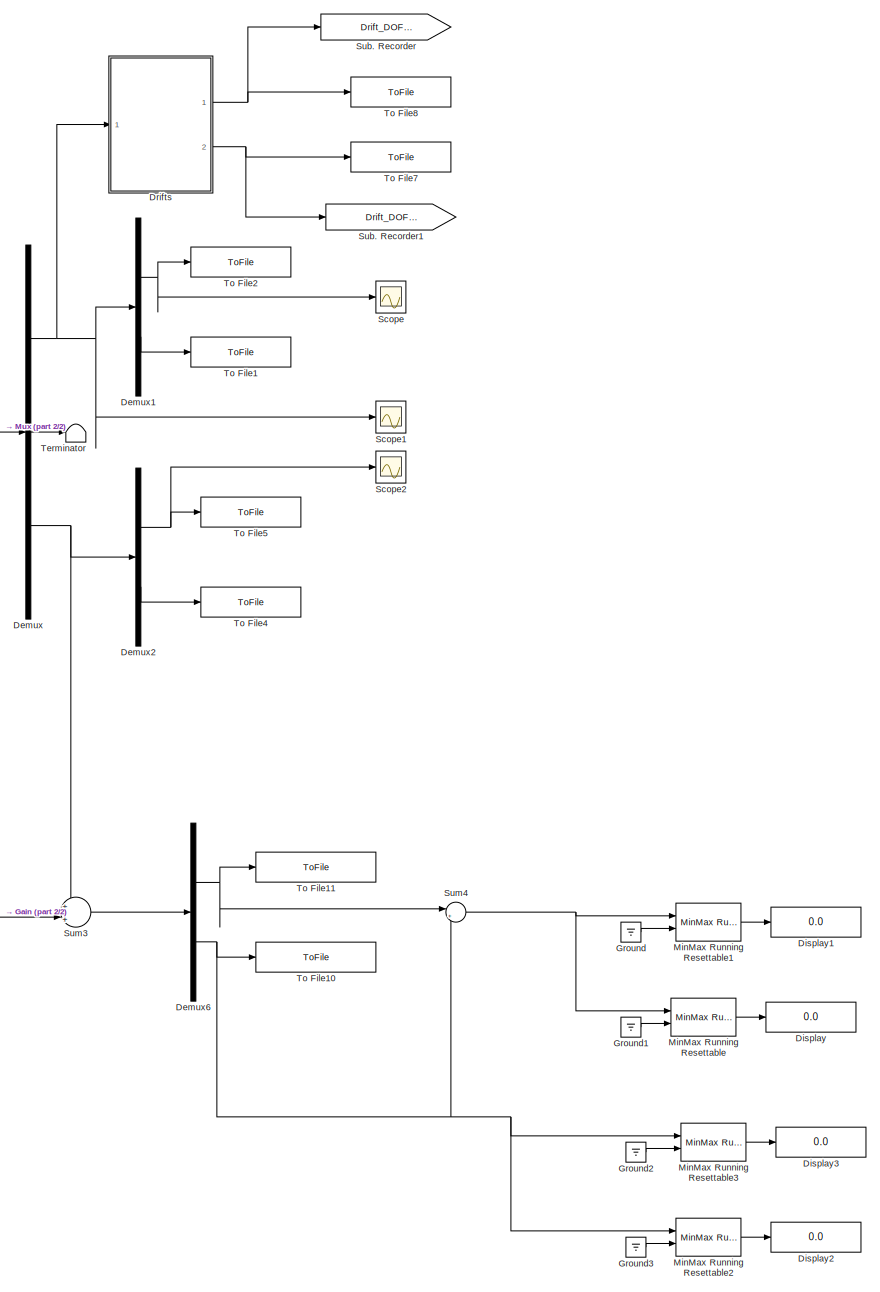
[diagram: Responses Recorder - part 1/2, right side, full height]
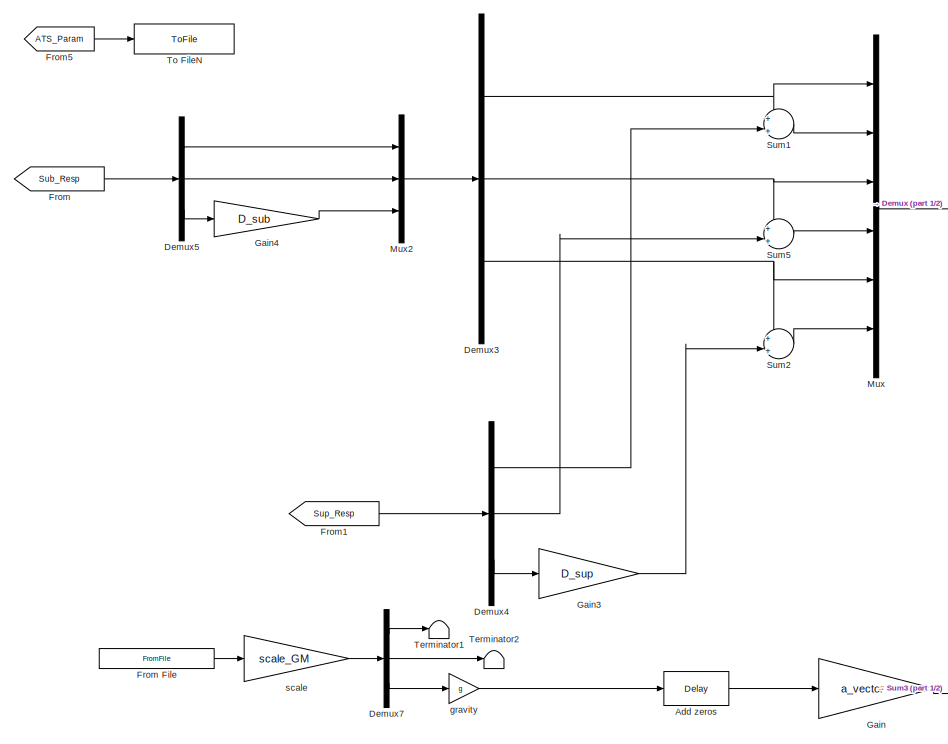
[diagram: Responses Recorder - part 2/2, middle left region]
BLOCK [SubSystem] Responses Recorder
  Ports = []
  RequestExecContextInheritance = off
  Variant = off
BLOCK [Delay] Responses Recorder/Add zeros
  DelayLength = onesec
  InitialCondition = 0
  InputPortMap = u0
  Ports = [1, 1]
BLOCK [Demux] Responses Recorder/Demux
  DisplayOption = bar
  Outputs = 3
  Ports = [1, 3]
BLOCK [Demux] Responses Recorder/Demux1
  DisplayOption = bar
  Outputs = 2
  Ports = [1, 2]
BLOCK [Demux] Responses Recorder/Demux2
  DisplayOption = bar
  Outputs = 2
  Ports = [1, 2]
BLOCK [Demux] Responses Recorder/Demux3
  DisplayOption = bar
  Outputs = 3
  Ports = [1, 3]
BLOCK [Demux] Responses Recorder/Demux4
  DisplayOption = bar
  Outputs = 3
  Ports = [1, 3]
BLOCK [Demux] Responses Recorder/Demux5
  DisplayOption = bar
  Outputs = 3
  Ports = [1, 3]
BLOCK [Demux] Responses Recorder/Demux6
  DisplayOption = bar
  Outputs = 2
  Ports = [1, 2]
BLOCK [Demux] Responses Recorder/Demux7
  DisplayOption = bar
  Outputs = 3
  Ports = [1, 3]
BLOCK [Display] Responses Recorder/Display
  Decimation = 1
  Ports = [1]
BLOCK [Display] Responses Recorder/Display1
  Decimation = 1
  Ports = [1]
BLOCK [Display] Responses Recorder/Display2
  Decimation = 1
  Ports = [1]
BLOCK [Display] Responses Recorder/Display3
  Decimation = 1
  Ports = [1]
BLOCK [SubSystem] Responses Recorder/Drifts
  Ports = [1, 2]
  RequestExecContextInheritance = off
  Variant = off
BLOCK [Demux] Responses Recorder/Drifts/Demux
  DisplayOption = bar
  Outputs = 2
  Ports = [1, 2]
BLOCK [Outport] Responses Recorder/Drifts/Drift DOF 1
  IconDisplay = Port number
BLOCK [Outport] Responses Recorder/Drifts/Drift DOF 2
  IconDisplay = Port number
  Port = 2
BLOCK [Inport] Responses Recorder/Drifts/In1
  IconDisplay = Port number
BLOCK [Sum] Responses Recorder/Drifts/Sum5
  IconShape = round
  InputSameDT = off
  Inputs = -|+||
  OutDataTypeStr = Inherit: Inherit via internal rule
  Ports = [2, 1]
  SaturateOnIntegerOverflow = off
BLOCK [From] Responses Recorder/From
  GotoTag = Sub_Resp
  TagVisibility = global
BLOCK [FromFile] Responses Recorder/From File
  FileName = lo89_2048Hz_All.mat
  SampleTime = samplePeriod
BLOCK [From] Responses Recorder/From1
  GotoTag = Sup_Resp
  TagVisibility = global
BLOCK [From] Responses Recorder/From5
  GotoTag = ATS_Param
  TagVisibility = global
BLOCK [Gain] Responses Recorder/Gain
  Gain = a_vector
  Multiplication = Matrix(K*u)
  OutDataTypeStr = Inherit: Inherit via internal rule
  ParamDataTypeStr = Inherit: Inherit via internal rule
  SaturateOnIntegerOverflow = off
BLOCK [Gain] Responses Recorder/Gain3
  Gain = D_sup
  Multiplication = Matrix(K*u) (u vector)
  OutDataTypeStr = Inherit: Inherit via internal rule
  ParamDataTypeStr = Inherit: Inherit via internal rule
  SaturateOnIntegerOverflow = off
BLOCK [Gain] Responses Recorder/Gain4
  Gain = D_sub
  Multiplication = Matrix(K*u) (u vector)
  OutDataTypeStr = Inherit: Inherit via internal rule
  ParamDataTypeStr = Inherit: Inherit via internal rule
  SaturateOnIntegerOverflow = off
BLOCK [Ground] Responses Recorder/Ground
BLOCK [Ground] Responses Recorder/Ground1
BLOCK [Ground] Responses Recorder/Ground2
BLOCK [Ground] Responses Recorder/Ground3
BLOCK [Reference] Responses Recorder/MinMax Running Resettable  REF=simulink/Math
Operations/MinMax
Running
Resettable
  Ports = [2, 1]
  SourceBlock = simulink/Math\nOperations/MinMax\nRunning\nResettable
  SourceType = MinMax Running Resettable
BLOCK [Reference] Responses Recorder/MinMax Running Resettable1  REF=simulink/Math
Operations/MinMax
Running
Resettable
  Ports = [2, 1]
  SourceBlock = simulink/Math\nOperations/MinMax\nRunning\nResettable
  SourceType = MinMax Running Resettable
BLOCK [Reference] Responses Recorder/MinMax Running Resettable2  REF=simulink/Math
Operations/MinMax
Running
Resettable
  Ports = [2, 1]
  SourceBlock = simulink/Math\nOperations/MinMax\nRunning\nResettable
  SourceType = MinMax Running Resettable
BLOCK [Reference] Responses Recorder/MinMax Running Resettable3  REF=simulink/Math
Operations/MinMax
Running
Resettable
  Ports = [2, 1]
  SourceBlock = simulink/Math\nOperations/MinMax\nRunning\nResettable
  SourceType = MinMax Running Resettable
BLOCK [Mux] Responses Recorder/Mux
  DisplayOption = bar
  Inputs = 6
  Ports = [6, 1]
BLOCK [Mux] Responses Recorder/Mux2
  DisplayOption = bar
  Inputs = 3
  Ports = [3, 1]
BLOCK [Scope] Responses Recorder/Scope
  Ports = [1]
  ScopeSpecificationString = Simulink.scopes.TimeScopeBlockCfg('CurrentConfiguration', extmgr.ConfigurationSet(extmgr.Configuration('Core','General UI',true),extmgr.Configuration('Core','Source UI',true),extmgr.Configuration('Sources','WiredSimulink',true,'DataLoggingVariableName','ScopeData1'),extmgr.Configuration('Visuals','Time Domain',true,'SerializedDisplays',{struct('MinYLimReal','-2.47336','MaxYLimReal','2.43077','YLab...<+1394ch>
BLOCK [Scope] Responses Recorder/Scope1
  Ports = [1]
  ScopeSpecificationString = Simulink.scopes.TimeScopeBlockCfg('CurrentConfiguration', extmgr.ConfigurationSet(extmgr.Configuration('Core','General UI',true),extmgr.Configuration('Core','Source UI',true),extmgr.Configuration('Sources','WiredSimulink',true,'DataLoggingVariableName','ScopeData1'),extmgr.Configuration('Visuals','Time Domain',true,'SerializedDisplays',{struct('MinYLimReal','-194.63355','MaxYLimReal','198.47317','...<+1435ch>
BLOCK [Scope] Responses Recorder/Scope2
  Ports = [1]
  ScopeSpecificationString = Simulink.scopes.TimeScopeBlockCfg('CurrentConfiguration', extmgr.ConfigurationSet(extmgr.Configuration('Core','General UI',true),extmgr.Configuration('Core','Source UI',true),extmgr.Configuration('Sources','WiredSimulink',true,'DataLoggingVariableName','ScopeData2','DataLoggingLimitDataPoints',true,'DataLoggingSaveFormat','Array','DataLoggingDecimation','1','DataLoggingDecimateData',true),extmgr.C...<+165ch>
BLOCK [Goto] Responses Recorder/Sub. Recorder
  GotoTag = Drift_DOF_1
  TagVisibility = global
BLOCK [Goto] Responses Recorder/Sub. Recorder1
  GotoTag = Drift_DOF_2
  TagVisibility = global
BLOCK [Sum] Responses Recorder/Sum1
  IconShape = round
  InputSameDT = off
  Inputs = +|+||
  OutDataTypeStr = Inherit: Inherit via internal rule
  Ports = [2, 1]
  SaturateOnIntegerOverflow = off
BLOCK [Sum] Responses Recorder/Sum2
  IconShape = round
  InputSameDT = off
  Inputs = +|+||
  OutDataTypeStr = Inherit: Inherit via internal rule
  Ports = [2, 1]
  SaturateOnIntegerOverflow = off
BLOCK [Sum] Responses Recorder/Sum3
  IconShape = round
  InputSameDT = off
  Inputs = +|+||
  OutDataTypeStr = Inherit: Inherit via internal rule
  Ports = [2, 1]
  SaturateOnIntegerOverflow = off
BLOCK [Sum] Responses Recorder/Sum4
  IconShape = round
  InputSameDT = off
  Inputs = |+-
  OutDataTypeStr = Inherit: Inherit via internal rule
  Ports = [2, 1]
  SaturateOnIntegerOverflow = off
BLOCK [Sum] Responses Recorder/Sum5
  IconShape = round
  InputSameDT = off
  Inputs = +|+||
  OutDataTypeStr = Inherit: Inherit via internal rule
  Ports = [2, 1]
  SaturateOnIntegerOverflow = off
BLOCK [Terminator] Responses Recorder/Terminator
BLOCK [Terminator] Responses Recorder/Terminator1
BLOCK [Terminator] Responses Recorder/Terminator2
BLOCK [ToFile] Responses Recorder/To File1
  Filename = Disp_DOF2.mat
  Ports = [1]
BLOCK [ToFile] Responses Recorder/To File10
  Filename = Abs_Accel_DOF2.mat
  Ports = [1]
BLOCK [ToFile] Responses Recorder/To File11
  Filename = Abs_Accel_DOF1.mat
  Ports = [1]
BLOCK [ToFile] Responses Recorder/To File2
  Filename = Disp_DOF1.mat
  Ports = [1]
BLOCK [ToFile] Responses Recorder/To File4
  Filename = Accel_DOF2.mat
  Ports = [1]
BLOCK [ToFile] Responses Recorder/To File5
  Filename = Accel_DOF1.mat
  Ports = [1]
BLOCK [ToFile] Responses Recorder/To File7
  Filename = Drift_DOF2.mat
  MatrixName = Drift_DOF2
  Ports = [1]
BLOCK [ToFile] Responses Recorder/To File8
  Filename = Drift_DOF1.mat
  MatrixName = Drift_DOF1
  Ports = [1]
BLOCK [ToFile] Responses Recorder/To FileN
  Filename = ATS_Param.mat
  MatrixName = ats_param
  Ports = [1]
BLOCK [Gain] Responses Recorder/gravity
  Gain = g
  OutDataTypeStr = Inherit: Inherit via internal rule
  ParamDataTypeStr = Inherit: Inherit via internal rule
  SaturateOnIntegerOverflow = off
BLOCK [Gain] Responses Recorder/scale
  Gain = scale_GM
  OutDataTypeStr = Inherit: Inherit via internal rule
  ParamDataTypeStr = Inherit: Inherit via internal rule
  SaturateOnIntegerOverflow = off
BLOCK [Reference] SC150 init  REF=xpcsystranlib/Shared
Memory/SC150 init 
  Ports = []
  SourceBlock = xpcsystranlib/Shared\nMemory/SC150 init
  SourceType = SC150 Init
BLOCK [Saturate] Saturation
  InputPortMap = u0
  LowerLimit = -4.5
  Ports = [1, 1]
  UpperLimit = 4.5
BLOCK [Reference] Scope (xPC) 1  REF=slrtlib/Displays and
Logging/Scope 
  Ports = [1]
  SourceBlock = slrtlib/Displays and\nLogging/Scope
  SourceType = xpcscopeblock
BLOCK [Reference] Scope (xPC) 2  REF=slrtlib/Displays and
Logging/Scope 
  Ports = [1]
  SourceBlock = slrtlib/Displays and\nLogging/Scope
  SourceType = xpcscopeblock
BLOCK [Reference] Scope (xPC) 3  REF=slrtlib/Displays and
Logging/Scope 
  Ports = [1]
  SourceBlock = slrtlib/Displays and\nLogging/Scope
  SourceType = xpcscopeblock
BLOCK [Reference] Scope 2  REF=slrtlib/Displays and
Logging/Scope 
  Ports = [1]
  SourceBlock = slrtlib/Displays and\nLogging/Scope
  SourceType = xpcscopeblock
BLOCK [Goto] Sub. Recorder
  GotoTag = Sub_Resp
  TagVisibility = global
BLOCK [Sum] Sum
  IconShape = round
  InputSameDT = off
  Inputs = |++
  OutDataTypeStr = Inherit: Inherit via internal rule
  Ports = [2, 1]
  SaturateOnIntegerOverflow = off
BLOCK [Sum] Sum2
  IconShape = round
  InputSameDT = off
  Inputs = |++
  OutDataTypeStr = Inherit: Inherit via internal rule
  Ports = [2, 1]
  SaturateOnIntegerOverflow = off
BLOCK [Sum] Sum3
  IconShape = round
  InputSameDT = off
  Inputs = ++|
  OutDataTypeStr = Inherit: Inherit via internal rule
  Ports = [2, 1]
  SaturateOnIntegerOverflow = off
BLOCK [Goto] Sup. Recorder
  GotoTag = Sup_Resp
  TagVisibility = global
BLOCK [Goto] apar rec
  GotoTag = ATS_Param
  TagVisibility = global
BLOCK [Constant] ctl modes
  Value = zeros(nAct, 1)
BLOCK [Constant] dig outs
  OutDataTypeStr = uint32
  Value = zeros(nDout, 1)
BLOCK [Constant] displ fbks
  Value = zeros(nAct, 1)
BLOCK [Constant] dpforce fbks
  Value = zeros(nAct, 1)
BLOCK [Constant] force cmds
  Value = zeros(nAct, 1)
BLOCK [Constant] force fbks
  Value = zeros(nAct, 1)
BLOCK [Gain] gravity
  Gain = g
  OutDataTypeStr = Inherit: Inherit via internal rule
  ParamDataTypeStr = Inherit: Inherit via internal rule
  SaturateOnIntegerOverflow = off
BLOCK [SubSystem] input from LHP
  Ports = [0, 6]
  RequestExecContextInheritance = off
  Variant = off
BLOCK [Reference] input from LHP/SC150 read  REF=xpcsystranlib/Shared
Memory/SC150 read 
  Ports = [0, 1]
  SourceBlock = xpcsystranlib/Shared\nMemory/SC150 read
  SourceType = SC150 Read
BLOCK [Reference] input from LHP/SC150 unpack  REF=slrtlib/Shared
Memory/Shared Memory Unpack 
  Ports = [1, 6]
  SourceBlock = slrtlib/Shared\nMemory/Shared Memory Unpack
  SourceType = Shared Memory Partition Unpacking
BLOCK [Outport] input from LHP/accel fbk
  IconDisplay = Port number
  Port = 5
BLOCK [Outport] input from LHP/displ fbk
  IconDisplay = Port number
  Port = 3
BLOCK [Outport] input from LHP/force fbk
  IconDisplay = Port number
  Port = 6
BLOCK [Outport] input from LHP/master span
  IconDisplay = Port number
BLOCK [Outport] input from LHP/ref
  IconDisplay = Port number
  Port = 2
BLOCK [DataTypeConversion] input from LHP/typeConv1
  OutDataTypeStr = double
BLOCK [DataTypeConversion] input from LHP/typeConv2
  OutDataTypeStr = double
BLOCK [DataTypeConversion] input from LHP/typeConv3
  OutDataTypeStr = double
BLOCK [DataTypeConversion] input from LHP/typeConv4
  OutDataTypeStr = double
BLOCK [DataTypeConversion] input from LHP/typeConv5
  OutDataTypeStr = double
BLOCK [DataTypeConversion] input from LHP/typeConv6
  OutDataTypeStr = double
BLOCK [Outport] input from LHP/veloc fbk
  IconDisplay = Port number
  Port = 4
BLOCK [SubSystem] input from STS
  Ports = [0, 9]
  RequestExecContextInheritance = off
  Variant = off
BLOCK [Reference] input from STS/SC150 read  REF=xpcsystranlib/Shared
Memory/SC150 read 
  Ports = [0, 1]
  SourceBlock = xpcsystranlib/Shared\nMemory/SC150 read
  SourceType = SC150 Read
BLOCK [Reference] input from STS/SC150 unpack  REF=slrtlib/Shared
Memory/Shared Memory Unpack 
  Ports = [1, 9]
  SourceBlock = slrtlib/Shared\nMemory/Shared Memory Unpack
  SourceType = Shared Memory Partition Unpacking
BLOCK [Outport] input from STS/ctl modes
  IconDisplay = Port number
  Port = 2
BLOCK [Outport] input from STS/dig inps
  IconDisplay = Port number
  Port = 9
BLOCK [Outport] input from STS/displ cmds
  IconDisplay = Port number
  Port = 3
BLOCK [Outport] input from STS/displ fbks
  IconDisplay = Port number
  Port = 5
BLOCK [Outport] input from STS/dpforce fbks
  IconDisplay = Port number
  Port = 7
BLOCK [Outport] input from STS/force cmds
  IconDisplay = Port number
  Port = 4
BLOCK [Outport] input from STS/force fbks
  IconDisplay = Port number
  Port = 6
BLOCK [Outport] input from STS/master span
  IconDisplay = Port number
BLOCK [DataTypeConversion] input from STS/typeConv1
  OutDataTypeStr = double
BLOCK [DataTypeConversion] input from STS/typeConv2
  OutDataTypeStr = uint32
BLOCK [DataTypeConversion] input from STS/typeConv3
  OutDataTypeStr = double
BLOCK [DataTypeConversion] input from STS/typeConv4
  OutDataTypeStr = double
BLOCK [DataTypeConversion] input from STS/typeConv5
  OutDataTypeStr = double
BLOCK [DataTypeConversion] input from STS/typeConv6
  OutDataTypeStr = double
BLOCK [DataTypeConversion] input from STS/typeConv7
  OutDataTypeStr = double
BLOCK [DataTypeConversion] input from STS/typeConv8
  OutDataTypeStr = double
BLOCK [DataTypeConversion] input from STS/typeConv9
  OutDataTypeStr = uint32
BLOCK [Outport] input from STS/valve cmds
  IconDisplay = Port number
  Port = 8
BLOCK [Constant] master span
  Value = 0
BLOCK [Constant] master span1
  Value = 0
BLOCK [SubSystem] output to LHP
  Ports = [2]
  RequestExecContextInheritance = off
  Variant = off
BLOCK [Reference] output to LHP/SC150 pack  REF=slrtlib/Shared
Memory/Shared Memory Pack 
  Ports = [2, 1]
  SourceBlock = slrtlib/Shared\nMemory/Shared Memory Pack
  SourceType = Shared-memory Pack
BLOCK [Reference] output to LHP/SC150 write  REF=xpcsystranlib/Shared
Memory/SC150 write 
  Ports = [1]
  SourceBlock = xpcsystranlib/Shared\nMemory/SC150 write
  SourceType = SC150 Write
BLOCK [Inport] output to LHP/master span
  IconDisplay = Port number
BLOCK [Inport] output to LHP/ref
  IconDisplay = Port number
  Port = 2
BLOCK [DataTypeConversion] output to LHP/typeConv1
  OutDataTypeStr = single
BLOCK [DataTypeConversion] output to LHP/typeConv2
  OutDataTypeStr = single
BLOCK [SubSystem] output to STS
  Ports = [8]
  RequestExecContextInheritance = off
  Variant = off
BLOCK [Reference] output to STS/SC150 pack  REF=slrtlib/Shared
Memory/Shared Memory Pack 
  Ports = [8, 1]
  SourceBlock = slrtlib/Shared\nMemory/Shared Memory Pack
  SourceType = Shared-memory Pack
BLOCK [Reference] output to STS/SC150 write  REF=xpcsystranlib/Shared
Memory/SC150 write 
  Ports = [1]
  SourceBlock = xpcsystranlib/Shared\nMemory/SC150 write
  SourceType = SC150 Write
BLOCK [Inport] output to STS/ctl modes
  IconDisplay = Port number
  Port = 2
BLOCK [Inport] output to STS/dig outs
  IconDisplay = Port number
  Port = 8
BLOCK [Inport] output to STS/displ cmds
  IconDisplay = Port number
  Port = 3
BLOCK [Inport] output to STS/displ fbks
  IconDisplay = Port number
  Port = 5
BLOCK [Inport] output to STS/dpforce fbks
  IconDisplay = Port number
  Port = 7
BLOCK [Inport] output to STS/force cmds
  IconDisplay = Port number
  Port = 4
BLOCK [Inport] output to STS/force fbks
  IconDisplay = Port number
  Port = 6
BLOCK [Inport] output to STS/master span
  IconDisplay = Port number
BLOCK [DataTypeConversion] output to STS/typeConv1
  OutDataTypeStr = single
BLOCK [DataTypeConversion] output to STS/typeConv2
  OutDataTypeStr = uint32
BLOCK [DataTypeConversion] output to STS/typeConv3
  OutDataTypeStr = single
BLOCK [DataTypeConversion] output to STS/typeConv4
  OutDataTypeStr = single
BLOCK [DataTypeConversion] output to STS/typeConv5
  OutDataTypeStr = single
BLOCK [DataTypeConversion] output to STS/typeConv6
  OutDataTypeStr = single
BLOCK [DataTypeConversion] output to STS/typeConv7
  OutDataTypeStr = single
BLOCK [DataTypeConversion] output to STS/typeConv8
  OutDataTypeStr = uint32
BLOCK [Gain] scale
  Gain = scale_GM
  OutDataTypeStr = Inherit: Inherit via internal rule
  ParamDataTypeStr = Inherit: Inherit via internal rule
  SaturateOnIntegerOverflow = off
BLOCK [Terminator] term1
BLOCK [Terminator] term2
BLOCK [Terminator] term3
BLOCK [Terminator] term4
BLOCK [Terminator] term5
BLOCK [Terminator] term7
BLOCK [Terminator] term8
BLOCK [Terminator] term9
ANNOTATION Experimental Superstructure EOM/Material/Hysteretic w//o Isotropic Hardening1: Like plastic displacement
ANNOTATION Numerical Substructure EOM/Material/Hysteretic w//o Isotropic Hardening1: Like plastic displacement
NET ATS compensator/Butterworth filter1:1 -> ATS compensator/Tapped delay subsystem:1, ATS compensator/calculate optimal coefficients:9
LINE ATS compensator/Butterworth filter:1 -> ATS compensator/Tapped Delay:1
LINE ATS compensator/Coefficient for LSM/Dot Product10:1 -> ATS compensator/Coefficient for LSM/Mux4:1
LINE ATS compensator/Coefficient for LSM/Dot Product11:1 -> ATS compensator/Coefficient for LSM/Mux4:2
LINE ATS compensator/Coefficient for LSM/Dot Product12:1 -> ATS compensator/Coefficient for LSM/Mux4:3
NET ATS compensator/Coefficient for LSM/Dot Product1:1 -> ATS compensator/Coefficient for LSM/Mux1:1, ATS compensator/Coefficient for LSM/Mux:2
NET ATS compensator/Coefficient for LSM/Dot Product2:1 -> ATS compensator/Coefficient for LSM/Mux2:1, ATS compensator/Coefficient for LSM/Mux:3
LINE ATS compensator/Coefficient for LSM/Dot Product4:1 -> ATS compensator/Coefficient for LSM/Mux1:2
NET ATS compensator/Coefficient for LSM/Dot Product5:1 -> ATS compensator/Coefficient for LSM/Mux1:3, ATS compensator/Coefficient for LSM/Mux2:2
LINE ATS compensator/Coefficient for LSM/Dot Product7:1 -> ATS compensator/Coefficient for LSM/Mux2:3
LINE ATS compensator/Coefficient for LSM/Dot Product:1 -> ATS compensator/Coefficient for LSM/Mux:1
LINE ATS compensator/Coefficient for LSM/Mux1:1 -> ATS compensator/Coefficient for LSM/X(2,:):1
LINE ATS compensator/Coefficient for LSM/Mux2:1 -> ATS compensator/Coefficient for LSM/X(3,:):1
LINE ATS compensator/Coefficient for LSM/Mux4:1 -> ATS compensator/Coefficient for LSM/Y:1
LINE ATS compensator/Coefficient for LSM/Mux:1 -> ATS compensator/Coefficient for LSM/X(1,:):1
NET ATS compensator/Coefficient for LSM/um:1 -> ATS compensator/Coefficient for LSM/Dot Product10:1, ATS compensator/Coefficient for LSM/Dot Product11:1, ATS compensator/Coefficient for LSM/Dot Product12:1
NET ATS compensator/Coefficient for LSM/x2dm:1 -> ATS compensator/Coefficient for LSM/Dot Product12:2, ATS compensator/Coefficient for LSM/Dot Product2:2, ATS compensator/Coefficient for LSM/Dot Product5:2, ATS compensator/Coefficient for LSM/Dot Product7:1, ATS compensator/Coefficient for LSM/Dot Product7:2
NET ATS compensator/Coefficient for LSM/xdm:1 -> ATS compensator/Coefficient for LSM/Dot Product11:2, ATS compensator/Coefficient for LSM/Dot Product1:2, ATS compensator/Coefficient for LSM/Dot Product4:1, ATS compensator/Coefficient for LSM/Dot Product4:2, ATS compensator/Coefficient for LSM/Dot Product5:1
NET ATS compensator/Coefficient for LSM/xm:1 -> ATS compensator/Coefficient for LSM/Dot Product10:2, ATS compensator/Coefficient for LSM/Dot Product1:1, ATS compensator/Coefficient for LSM/Dot Product2:1, ATS compensator/Coefficient for LSM/Dot Product:1, ATS compensator/Coefficient for LSM/Dot Product:2
LINE ATS compensator/Coefficient for LSM:1 -> ATS compensator/calculate optimal coefficients:5
LINE ATS compensator/Coefficient for LSM:2 -> ATS compensator/calculate optimal coefficients:6
LINE ATS compensator/Coefficient for LSM:3 -> ATS compensator/calculate optimal coefficients:7
LINE ATS compensator/Coefficient for LSM:4 -> ATS compensator/calculate optimal coefficients:8
LINE ATS compensator/Constant1:1 -> ATS compensator/calculate optimal coefficients:2
LINE ATS compensator/Constant2:1 -> ATS compensator/calculate optimal coefficients:3
LINE ATS compensator/Constant3:1 -> ATS compensator/calculate optimal coefficients:1
LINE ATS compensator/Constant4:1 -> ATS compensator/calculate optimal coefficients:4
LINE ATS compensator/Discrete Derivative1:1 -> ATS compensator/Manual Switch1:1
NET ATS compensator/Discrete Derivative:1 -> ATS compensator/Discrete Derivative1:1, ATS compensator/Manual Switch:1
LINE ATS compensator/Manual Switch1:1 -> ATS compensator/compensated actuator input disp.:4
LINE ATS compensator/Manual Switch:1 -> ATS compensator/compensated actuator input disp.:3
LINE ATS compensator/MovingAverage Filter2:1 -> ATS compensator/compensated disp:1
LINE ATS compensator/Selector:1 -> ATS compensator/Unit Delay1:1
LINE ATS compensator/Tapped Delay:1 -> ATS compensator/skip:1
LINE ATS compensator/Tapped delay subsystem/Discrete Derivative1:1 -> ATS compensator/Tapped delay subsystem/Tapped Delay2:1
NET ATS compensator/Tapped delay subsystem/Discrete Derivative:1 -> ATS compensator/Tapped delay subsystem/Discrete Derivative1:1, ATS compensator/Tapped delay subsystem/Tapped Delay1:1
NET ATS compensator/Tapped delay subsystem/In1:1 -> ATS compensator/Tapped delay subsystem/Discrete Derivative:1, ATS compensator/Tapped delay subsystem/Tapped Delay:1
LINE ATS compensator/Tapped delay subsystem/Tapped Delay1:1 -> ATS compensator/Tapped delay subsystem/skip1:1
LINE ATS compensator/Tapped delay subsystem/Tapped Delay2:1 -> ATS compensator/Tapped delay subsystem/skip2:1
LINE ATS compensator/Tapped delay subsystem/Tapped Delay:1 -> ATS compensator/Tapped delay subsystem/skip:1
LINE ATS compensator/Tapped delay subsystem/skip1:1 -> ATS compensator/Tapped delay subsystem/xd:1
LINE ATS compensator/Tapped delay subsystem/skip2:1 -> ATS compensator/Tapped delay subsystem/x2d:1
LINE ATS compensator/Tapped delay subsystem/skip:1 -> ATS compensator/Tapped delay subsystem/x:1
LINE ATS compensator/Tapped delay subsystem:1 -> ATS compensator/Coefficient for LSM:2
LINE ATS compensator/Tapped delay subsystem:2 -> ATS compensator/Coefficient for LSM:3
LINE ATS compensator/Tapped delay subsystem:3 -> ATS compensator/Coefficient for LSM:4
LINE ATS compensator/Unit Delay1:1 -> ATS compensator/calculate optimal coefficients:11
LINE ATS compensator/Unit Delay:1 -> ATS compensator/calculate optimal coefficients:10
NET ATS compensator/calculate optimal coefficients:1 -> ATS compensator/Selector:1, ATS compensator/Unit Delay:1, ATS compensator/apar:1, ATS compensator/compensated actuator input disp.:1
NET ATS compensator/compensated actuator input disp.:1 -> ATS compensator/Butterworth filter:1, ATS compensator/MovingAverage Filter2:1
LINE ATS compensator/measured disp:1 -> ATS compensator/Butterworth filter1:1
LINE ATS compensator/skip:1 -> ATS compensator/Coefficient for LSM:1
LINE ATS compensator/target accel:1 -> ATS compensator/Manual Switch1:2
NET ATS compensator/target disp:1 -> ATS compensator/Discrete Derivative:1, ATS compensator/compensated actuator input disp.:2
LINE ATS compensator/target vel:1 -> ATS compensator/Manual Switch:2
LINE ATS compensator:1 -> Manual Switch1:1
NET ATS compensator:2 -> Demux1:1, apar rec:1
LINE Add zeros:1 -> Demux:1
LINE Base Shear/Demux:1 -> Base Shear/Offset4:1
LINE Base Shear/Demux:2 -> Base Shear/Offset1:1
LINE Base Shear/Demux:3 -> Base Shear/Offset2:1
LINE Base Shear/Demux:4 -> Base Shear/Offset3:1
LINE Base Shear/Load Cells:1 -> Base Shear/Demux:1
LINE Base Shear/Offset1/Constant:1 -> Base Shear/Offset1/Switch:3
LINE Base Shear/Offset1/Counter:1 -> Base Shear/Offset1/typeConv2:1
LINE Base Shear/Offset1/Data Store Read:1 -> Base Shear/Offset1/Sum1:2
LINE Base Shear/Offset1/If Action/Data Store Read:1 -> Base Shear/Offset1/If Action/Sum:2
LINE Base Shear/Offset1/If Action/Gain:1 -> Base Shear/Offset1/If Action/Sum:1
LINE Base Shear/Offset1/If Action/In1:1 -> Base Shear/Offset1/If Action/Gain:1
LINE Base Shear/Offset1/If Action/Sum:1 -> Base Shear/Offset1/If Action/Data Store Write:1
LINE Base Shear/Offset1/If:1 -> Base Shear/Offset1/If Action:ifaction
NET Base Shear/Offset1/In1:1 -> Base Shear/Offset1/If Action:1, Base Shear/Offset1/Sum1:1
LINE Base Shear/Offset1/Sum1:1 -> Base Shear/Offset1/Switch:1
LINE Base Shear/Offset1/Switch:1 -> Base Shear/Offset1/Out1:1
NET Base Shear/Offset1/typeConv2:1 -> Base Shear/Offset1/If:1, Base Shear/Offset1/Switch:2
LINE Base Shear/Offset1:1 -> Base Shear/Sum:2
LINE Base Shear/Offset2/Constant:1 -> Base Shear/Offset2/Switch:3
LINE Base Shear/Offset2/Counter:1 -> Base Shear/Offset2/typeConv2:1
LINE Base Shear/Offset2/Data Store Read:1 -> Base Shear/Offset2/Sum1:2
LINE Base Shear/Offset2/If Action/Data Store Read:1 -> Base Shear/Offset2/If Action/Sum:2
LINE Base Shear/Offset2/If Action/Gain:1 -> Base Shear/Offset2/If Action/Sum:1
LINE Base Shear/Offset2/If Action/In1:1 -> Base Shear/Offset2/If Action/Gain:1
LINE Base Shear/Offset2/If Action/Sum:1 -> Base Shear/Offset2/If Action/Data Store Write:1
LINE Base Shear/Offset2/If:1 -> Base Shear/Offset2/If Action:ifaction
NET Base Shear/Offset2/In1:1 -> Base Shear/Offset2/If Action:1, Base Shear/Offset2/Sum1:1
LINE Base Shear/Offset2/Sum1:1 -> Base Shear/Offset2/Switch:1
LINE Base Shear/Offset2/Switch:1 -> Base Shear/Offset2/Out1:1
NET Base Shear/Offset2/typeConv2:1 -> Base Shear/Offset2/If:1, Base Shear/Offset2/Switch:2
LINE Base Shear/Offset2:1 -> Base Shear/Sum:3
LINE Base Shear/Offset3/Constant:1 -> Base Shear/Offset3/Switch:3
LINE Base Shear/Offset3/Counter:1 -> Base Shear/Offset3/typeConv2:1
LINE Base Shear/Offset3/Data Store Read:1 -> Base Shear/Offset3/Sum1:2
LINE Base Shear/Offset3/If Action/Data Store Read:1 -> Base Shear/Offset3/If Action/Sum:2
LINE Base Shear/Offset3/If Action/Gain:1 -> Base Shear/Offset3/If Action/Sum:1
LINE Base Shear/Offset3/If Action/In1:1 -> Base Shear/Offset3/If Action/Gain:1
LINE Base Shear/Offset3/If Action/Sum:1 -> Base Shear/Offset3/If Action/Data Store Write:1
LINE Base Shear/Offset3/If:1 -> Base Shear/Offset3/If Action:ifaction
NET Base Shear/Offset3/In1:1 -> Base Shear/Offset3/If Action:1, Base Shear/Offset3/Sum1:1
LINE Base Shear/Offset3/Sum1:1 -> Base Shear/Offset3/Switch:1
LINE Base Shear/Offset3/Switch:1 -> Base Shear/Offset3/Out1:1
NET Base Shear/Offset3/typeConv2:1 -> Base Shear/Offset3/If:1, Base Shear/Offset3/Switch:2
LINE Base Shear/Offset3:1 -> Base Shear/Sum:4
LINE Base Shear/Offset4/Constant:1 -> Base Shear/Offset4/Switch:3
LINE Base Shear/Offset4/Counter:1 -> Base Shear/Offset4/typeConv2:1
LINE Base Shear/Offset4/Data Store Read:1 -> Base Shear/Offset4/Sum1:2
LINE Base Shear/Offset4/If Action/Data Store Read:1 -> Base Shear/Offset4/If Action/Sum:2
LINE Base Shear/Offset4/If Action/Gain:1 -> Base Shear/Offset4/If Action/Sum:1
LINE Base Shear/Offset4/If Action/In1:1 -> Base Shear/Offset4/If Action/Gain:1
LINE Base Shear/Offset4/If Action/Sum:1 -> Base Shear/Offset4/If Action/Data Store Write:1
LINE Base Shear/Offset4/If:1 -> Base Shear/Offset4/If Action:ifaction
NET Base Shear/Offset4/In1:1 -> Base Shear/Offset4/If Action:1, Base Shear/Offset4/Sum1:1
LINE Base Shear/Offset4/Sum1:1 -> Base Shear/Offset4/Switch:1
LINE Base Shear/Offset4/Switch:1 -> Base Shear/Offset4/Out1:1
NET Base Shear/Offset4/typeConv2:1 -> Base Shear/Offset4/If:1, Base Shear/Offset4/Switch:2
LINE Base Shear/Offset4:1 -> Base Shear/Sum:1
LINE Base Shear/Sum:1 -> Base Shear/Total:1
NET Base Shear:1 -> Gain1:1, Mux:1, Out23:1
LINE Demux1:1 -> Out15:1
LINE Demux1:2 -> Out16:1
LINE Demux1:3 -> Out17:1
LINE Demux1:4 -> Out18:1
LINE Demux2:1 -> Offset4:1
LINE Demux2:2 -> Offset5:1
LINE Demux2:3 -> Offset6:1
LINE Demux2:4 -> Offset7:1
LINE Demux:1 -> Sum3:2
LINE Demux:2 -> Sum2:1
LINE Demux:3 -> gravity:1
LINE Experimental Superstructure EOM/Delay1:1 -> Experimental Superstructure EOM/Subsystem:3
LINE Experimental Superstructure EOM/Demux1:1 -> Experimental Superstructure EOM/Terminator2:1
LINE Experimental Superstructure EOM/Demux1:2 -> Experimental Superstructure EOM/Gain:1
LINE Experimental Superstructure EOM/Demux1:3 -> Experimental Superstructure EOM/Terminator3:1
LINE Experimental Superstructure EOM/Demux:1 -> Experimental Superstructure EOM/Material:1
LINE Experimental Superstructure EOM/Demux:2 -> Experimental Superstructure EOM/Terminator1:1
LINE Experimental Superstructure EOM/Demux:3 -> Experimental Superstructure EOM/Terminator:1
LINE Experimental Superstructure EOM/Excitation Sup.:1 -> Experimental Superstructure EOM/Gain2:1
LINE Experimental Superstructure EOM/Gain2:1 -> Experimental Superstructure EOM/Subsystem:1
LINE Experimental Superstructure EOM/Gain:1 -> Experimental Superstructure EOM/Sum:1
NET Experimental Superstructure EOM/Material/Disp:1 -> Experimental Superstructure EOM/Material/DOF 2 (Experimental):1, Experimental Superstructure EOM/Material/Gain:1, Experimental Superstructure EOM/Material/Hysteretic w//o Isotropic Hardening1:1, Experimental Superstructure EOM/Material/MinMax Running Resettable2:1, Experimental Superstructure EOM/Material/MinMax Running Resettable3:1, Experimental Superstructure EOM/Material/Scope1:1
LINE Experimental Superstructure EOM/Material/Gain:1 -> Experimental Superstructure EOM/Material/Manual Switch:2
LINE Experimental Superstructure EOM/Material/Ground1:1 -> Experimental Superstructure EOM/Material/MinMax Running Resettable:2
LINE Experimental Superstructure EOM/Material/Ground2:1 -> Experimental Superstructure EOM/Material/MinMax Running Resettable3:2
LINE Experimental Superstructure EOM/Material/Ground3:1 -> Experimental Superstructure EOM/Material/MinMax Running Resettable2:2
LINE Experimental Superstructure EOM/Material/Ground:1 -> Experimental Superstructure EOM/Material/MinMax Running Resettable1:2
LINE Experimental Superstructure EOM/Material/Hysteresis Recorder 1/Restoring Force:1 -> Experimental Superstructure EOM/Material/Hysteresis Recorder 1/To File2:1
LINE Experimental Superstructure EOM/Material/Hysteretic w//o Isotropic Hardening1/Abs:1 -> Experimental Superstructure EOM/Material/Hysteretic w//o Isotropic Hardening1/Sum2:2
NET Experimental Superstructure EOM/Material/Hysteretic w//o Isotropic Hardening1/Constant:1 -> Experimental Superstructure EOM/Material/Hysteretic w//o Isotropic Hardening1/Product:1, Experimental Superstructure EOM/Material/Hysteretic w//o Isotropic Hardening1/Sum2:1
NET Experimental Superstructure EOM/Material/Hysteretic w//o Isotropic Hardening1/Disp:1 -> Experimental Superstructure EOM/Material/Hysteretic w//o Isotropic Hardening1/Elastic_Force:1, Experimental Superstructure EOM/Material/Hysteretic w//o Isotropic Hardening1/Sum1:1
LINE Experimental Superstructure EOM/Material/Hysteretic w//o Isotropic Hardening1/Elastic_Force:1 -> Experimental Superstructure EOM/Material/Hysteretic w//o Isotropic Hardening1/Sum:1
LINE Experimental Superstructure EOM/Material/Hysteretic w//o Isotropic Hardening1/Plastic_Stiff1:1 -> Experimental Superstructure EOM/Material/Hysteretic w//o Isotropic Hardening1/Product1:2
NET Experimental Superstructure EOM/Material/Hysteretic w//o Isotropic Hardening1/Plastic_Stiff:1 -> Experimental Superstructure EOM/Material/Hysteretic w//o Isotropic Hardening1/Abs:1, Experimental Superstructure EOM/Material/Hysteretic w//o Isotropic Hardening1/Sign:1, Experimental Superstructure EOM/Material/Hysteretic w//o Isotropic Hardening1/Switch:3
LINE Experimental Superstructure EOM/Material/Hysteretic w//o Isotropic Hardening1/Product1:1 -> Experimental Superstructure EOM/Material/Hysteretic w//o Isotropic Hardening1/Sum3:1
LINE Experimental Superstructure EOM/Material/Hysteretic w//o Isotropic Hardening1/Product:1 -> Experimental Superstructure EOM/Material/Hysteretic w//o Isotropic Hardening1/Switch:1
NET Experimental Superstructure EOM/Material/Hysteretic w//o Isotropic Hardening1/Sign:1 -> Experimental Superstructure EOM/Material/Hysteretic w//o Isotropic Hardening1/Product1:1, Experimental Superstructure EOM/Material/Hysteretic w//o Isotropic Hardening1/Product:2
LINE Experimental Superstructure EOM/Material/Hysteretic w//o Isotropic Hardening1/Sum1:1 -> Experimental Superstructure EOM/Material/Hysteretic w//o Isotropic Hardening1/Plastic_Stiff:1
NET Experimental Superstructure EOM/Material/Hysteretic w//o Isotropic Hardening1/Sum2:1 -> Experimental Superstructure EOM/Material/Hysteretic w//o Isotropic Hardening1/Plastic_Stiff1:1, Experimental Superstructure EOM/Material/Hysteretic w//o Isotropic Hardening1/Switch1:2, Experimental Superstructure EOM/Material/Hysteretic w//o Isotropic Hardening1/Switch:2
LINE Experimental Superstructure EOM/Material/Hysteretic w//o Isotropic Hardening1/Sum3:1 -> Experimental Superstructure EOM/Material/Hysteretic w//o Isotropic Hardening1/Switch1:1
LINE Experimental Superstructure EOM/Material/Hysteretic w//o Isotropic Hardening1/Sum:1 -> Experimental Superstructure EOM/Material/Hysteretic w//o Isotropic Hardening1/Force:1
LINE Experimental Superstructure EOM/Material/Hysteretic w//o Isotropic Hardening1/Switch1:1 -> Experimental Superstructure EOM/Material/Hysteretic w//o Isotropic Hardening1/Up:1
LINE Experimental Superstructure EOM/Material/Hysteretic w//o Isotropic Hardening1/Switch:1 -> Experimental Superstructure EOM/Material/Hysteretic w//o Isotropic Hardening1/Sum:2
NET Experimental Superstructure EOM/Material/Hysteretic w//o Isotropic Hardening1/Unit Delay:1 -> Experimental Superstructure EOM/Material/Hysteretic w//o Isotropic Hardening1/Sum1:2, Experimental Superstructure EOM/Material/Hysteretic w//o Isotropic Hardening1/Sum3:2, Experimental Superstructure EOM/Material/Hysteretic w//o Isotropic Hardening1/Switch1:3
LINE Experimental Superstructure EOM/Material/Hysteretic w//o Isotropic Hardening1/Upi:1 -> Experimental Superstructure EOM/Material/Hysteretic w//o Isotropic Hardening1/Unit Delay:1
LINE Experimental Superstructure EOM/Material/Hysteretic w//o Isotropic Hardening1:1 -> Experimental Superstructure EOM/Material/Manual Switch:1
LINE Experimental Superstructure EOM/Material/Hysteretic w//o Isotropic Hardening1:2 -> Experimental Superstructure EOM/Material/Hysteretic w//o Isotropic Hardening1:2
NET Experimental Superstructure EOM/Material/Manual Switch:1 -> Experimental Superstructure EOM/Material/DOF 2 (Experimental):2, Experimental Superstructure EOM/Material/Force:1, Experimental Superstructure EOM/Material/Hysteresis Recorder 1:1, Experimental Superstructure EOM/Material/MinMax Running Resettable1:1, Experimental Superstructure EOM/Material/MinMax Running Resettable:1, Experimental Superstructure EOM/Material/Scope:1
LINE Experimental Superstructure EOM/Material/MinMax Running Resettable1:1 -> Experimental Superstructure EOM/Material/Display1:1
LINE Experimental Superstructure EOM/Material/MinMax Running Resettable2:1 -> Experimental Superstructure EOM/Material/Display2:1
LINE Experimental Superstructure EOM/Material/MinMax Running Resettable3:1 -> Experimental Superstructure EOM/Material/Display3:1
LINE Experimental Superstructure EOM/Material/MinMax Running Resettable:1 -> Experimental Superstructure EOM/Material/Display:1
NET Experimental Superstructure EOM/Material:1 -> Experimental Superstructure EOM/Subsystem:2, Experimental Superstructure EOM/Sum:2
LINE Experimental Superstructure EOM/Subsystem/Delay1:1 -> Experimental Superstructure EOM/Subsystem/Gain3:1
LINE Experimental Superstructure EOM/Subsystem/Delay:1 -> Experimental Superstructure EOM/Subsystem/Gain1:1
NET Experimental Superstructure EOM/Subsystem/Excitation Force:1 -> Experimental Superstructure EOM/Subsystem/Delay:1, Experimental Superstructure EOM/Subsystem/Gain:1
LINE Experimental Superstructure EOM/Subsystem/Gain1:1 -> Experimental Superstructure EOM/Subsystem/Sum:2
LINE Experimental Superstructure EOM/Subsystem/Gain2:1 -> Experimental Superstructure EOM/Subsystem/Sum1:1
LINE Experimental Superstructure EOM/Subsystem/Gain3:1 -> Experimental Superstructure EOM/Subsystem/Sum1:2
LINE Experimental Superstructure EOM/Subsystem/Gain:1 -> Experimental Superstructure EOM/Subsystem/Sum:1
LINE Experimental Superstructure EOM/Subsystem/Mux:1 -> Experimental Superstructure EOM/Subsystem/Responses i+1:1
NET Experimental Superstructure EOM/Subsystem/Responses i:1 -> Experimental Superstructure EOM/Subsystem/Subsystem1:1, Experimental Superstructure EOM/Subsystem/Subsystem2:1, Experimental Superstructure EOM/Subsystem/Subsystem:1
NET Experimental Superstructure EOM/Subsystem/Restoring A//E:1 -> Experimental Superstructure EOM/Subsystem/Delay1:1, Experimental Superstructure EOM/Subsystem/Gain2:1
LINE Experimental Superstructure EOM/Subsystem/Subsystem/Demux:1 -> Experimental Superstructure EOM/Subsystem/Subsystem/Sum1:1
LINE Experimental Superstructure EOM/Subsystem/Subsystem/Demux:2 -> Experimental Superstructure EOM/Subsystem/Subsystem/Gain:1
LINE Experimental Superstructure EOM/Subsystem/Subsystem/Demux:3 -> Experimental Superstructure EOM/Subsystem/Subsystem/Gain1:1
LINE Experimental Superstructure EOM/Subsystem/Subsystem/Gain1:1 -> Experimental Superstructure EOM/Subsystem/Subsystem/Sum1:3
LINE Experimental Superstructure EOM/Subsystem/Subsystem/Gain:1 -> Experimental Superstructure EOM/Subsystem/Subsystem/Sum1:2
LINE Experimental Superstructure EOM/Subsystem/Subsystem/In:1 -> Experimental Superstructure EOM/Subsystem/Subsystem/Demux:1
LINE Experimental Superstructure EOM/Subsystem/Subsystem/Sum1:1 -> Experimental Superstructure EOM/Subsystem/Subsystem/X i+1:1
LINE Experimental Superstructure EOM/Subsystem/Subsystem1/Demux:1 -> Experimental Superstructure EOM/Subsystem/Subsystem1/Terminator:1
LINE Experimental Superstructure EOM/Subsystem/Subsystem1/Demux:2 -> Experimental Superstructure EOM/Subsystem/Subsystem1/Sum:1
LINE Experimental Superstructure EOM/Subsystem/Subsystem1/Demux:3 -> Experimental Superstructure EOM/Subsystem/Subsystem1/Sum:2
LINE Experimental Superstructure EOM/Subsystem/Subsystem1/In:1 -> Experimental Superstructure EOM/Subsystem/Subsystem1/Demux:1
LINE Experimental Superstructure EOM/Subsystem/Subsystem1/Sum:1 -> Experimental Superstructure EOM/Subsystem/Subsystem1/X' i+1:1
LINE Experimental Superstructure EOM/Subsystem/Subsystem1:1 -> Experimental Superstructure EOM/Subsystem/Mux:2
LINE Experimental Superstructure EOM/Subsystem/Subsystem2/Demux:1 -> Experimental Superstructure EOM/Subsystem/Subsystem2/Terminator:1
LINE Experimental Superstructure EOM/Subsystem/Subsystem2/Demux:2 -> Experimental Superstructure EOM/Subsystem/Subsystem2/Sum1:1
NET Experimental Superstructure EOM/Subsystem/Subsystem2/Demux:3 -> Experimental Superstructure EOM/Subsystem/Subsystem2/Gain1:1, Experimental Superstructure EOM/Subsystem/Subsystem2/Gain:1
LINE Experimental Superstructure EOM/Subsystem/Subsystem2/F i+1-alpha_f:1 -> Experimental Superstructure EOM/Subsystem/Subsystem2/Sum:1
LINE Experimental Superstructure EOM/Subsystem/Subsystem2/Gain1:1 -> Experimental Superstructure EOM/Subsystem/Subsystem2/Sum1:2
LINE Experimental Superstructure EOM/Subsystem/Subsystem2/Gain2:1 -> Experimental Superstructure EOM/Subsystem/Subsystem2/Sum:2
LINE Experimental Superstructure EOM/Subsystem/Subsystem2/Gain3:1 -> Experimental Superstructure EOM/Subsystem/Subsystem2/X'hat i+1:1
LINE Experimental Superstructure EOM/Subsystem/Subsystem2/Gain:1 -> Experimental Superstructure EOM/Subsystem/Subsystem2/Sum:4
LINE Experimental Superstructure EOM/Subsystem/Subsystem2/In:1 -> Experimental Superstructure EOM/Subsystem/Subsystem2/Demux:1
LINE Experimental Superstructure EOM/Subsystem/Subsystem2/R i+1-alpha_f:1 -> Experimental Superstructure EOM/Subsystem/Subsystem2/Sum:3
LINE Experimental Superstructure EOM/Subsystem/Subsystem2/Sum1:1 -> Experimental Superstructure EOM/Subsystem/Subsystem2/Gain2:1
LINE Experimental Superstructure EOM/Subsystem/Subsystem2/Sum:1 -> Experimental Superstructure EOM/Subsystem/Subsystem2/Gain3:1
LINE Experimental Superstructure EOM/Subsystem/Subsystem2:1 -> Experimental Superstructure EOM/Subsystem/Mux:3
LINE Experimental Superstructure EOM/Subsystem/Subsystem:1 -> Experimental Superstructure EOM/Subsystem/Mux:1
LINE Experimental Superstructure EOM/Subsystem/Sum1:1 -> Experimental Superstructure EOM/Subsystem/Subsystem2:3
LINE Experimental Superstructure EOM/Subsystem/Sum:1 -> Experimental Superstructure EOM/Subsystem/Subsystem2:2
NET Experimental Superstructure EOM/Subsystem:1 -> Experimental Superstructure EOM/Delay1:1, Experimental Superstructure EOM/Demux1:1, Experimental Superstructure EOM/Demux:1, Experimental Superstructure EOM/Responses Sup.:1
LINE Experimental Superstructure EOM/Sum:1 -> Experimental Superstructure EOM/Resisting Force Sup.:1
LINE Experimental Superstructure EOM:1 -> Sup. Recorder:1
NET Experimental Superstructure EOM:2 -> Gain3:1, Out4:1
LINE Filter1/In1:1 -> Filter1/MovingAverage Filter2:1
LINE Filter1/MovingAverage Filter2:1 -> Filter1/Out1:1
LINE Filter1:1 -> Offset1:1
LINE Filter2/In1:1 -> Filter2/MovingAverage Filter2:1
LINE Filter2/MovingAverage Filter2:1 -> Filter2/Out1:1
LINE Filter2:1 -> Offset:1
LINE Filter3/In1:1 -> Filter3/MovingAverage Filter2:1
LINE Filter3/MovingAverage Filter2:1 -> Filter3/Out1:1
LINE Filter3:1 -> Offset2:1
LINE Filter4/In1:1 -> Filter4/MovingAverage Filter2:1
LINE Filter4/MovingAverage Filter2:1 -> Filter4/Out1:1
LINE Filter4:1 -> Offset3:1
LINE Filter5/In1:1 -> Filter5/MovingAverage Filter2:1
LINE Filter5/MovingAverage Filter2:1 -> Filter5/Out1:1
NET Filter5:1 -> Base Shear:1, Demux2:1
LINE From File:1 -> scale:1
LINE From1:1 -> Out3:1
NET From2:1 -> Out1:1, Scope (xPC) 3:1
LINE From3:1 -> Sum3:1
LINE From4:1 -> Sum2:2
LINE From:1 -> Out2:1
LINE Gain1:1 -> Sum:2
LINE Gain3:1 -> Sum:1
LINE Gain:1 -> Out5:1
LINE Manual Switch1:1 -> Rate Limiter:1
LINE Mux1:1 -> Scope 2:1
LINE Mux2:1 -> output to STS:3
LINE Mux:1 -> Scope (xPC) 1:1
LINE Numerical Substructure EOM/Delay1:1 -> Numerical Substructure EOM/Subsystem:4
LINE Numerical Substructure EOM/Demux1:1 -> Numerical Substructure EOM/Goto2:1
NET Numerical Substructure EOM/Demux1:2 -> Numerical Substructure EOM/Goto3:1, Numerical Substructure EOM/Terminator2:1
LINE Numerical Substructure EOM/Demux1:3 -> Numerical Substructure EOM/Gain1:1
LINE Numerical Substructure EOM/Demux:1 -> Numerical Substructure EOM/Material:1
LINE Numerical Substructure EOM/Demux:2 -> Numerical Substructure EOM/Terminator:1
LINE Numerical Substructure EOM/Demux:3 -> Numerical Substructure EOM/Terminator1:1
NET Numerical Substructure EOM/Excitation Sub.:1 -> Numerical Substructure EOM/Gain:1, Numerical Substructure EOM/Sum1:1
LINE Numerical Substructure EOM/From1:1 -> Numerical Substructure EOM/Subsystem:3
LINE Numerical Substructure EOM/From:1 -> Numerical Substructure EOM/Excitation Sup.:1
LINE Numerical Substructure EOM/Gain1:1 -> Numerical Substructure EOM/Sum1:2
NET Numerical Substructure EOM/Gain:1 -> Numerical Substructure EOM/Scope1:1, Numerical Substructure EOM/Subsystem:1
NET Numerical Substructure EOM/Material/Disp:1 -> Numerical Substructure EOM/Material/DOF 1 (Numerical):1, Numerical Substructure EOM/Material/Gain:1, Numerical Substructure EOM/Material/Hysteretic w//o Isotropic Hardening1:1, Numerical Substructure EOM/Material/MinMax Running Resettable2:1, Numerical Substructure EOM/Material/MinMax Running Resettable3:1, Numerical Substructure EOM/Material/Scope1:1
LINE Numerical Substructure EOM/Material/Gain:1 -> Numerical Substructure EOM/Material/Manual Switch:2
LINE Numerical Substructure EOM/Material/Ground1:1 -> Numerical Substructure EOM/Material/MinMax Running Resettable:2
LINE Numerical Substructure EOM/Material/Ground2:1 -> Numerical Substructure EOM/Material/MinMax Running Resettable3:2
LINE Numerical Substructure EOM/Material/Ground3:1 -> Numerical Substructure EOM/Material/MinMax Running Resettable2:2
LINE Numerical Substructure EOM/Material/Ground:1 -> Numerical Substructure EOM/Material/MinMax Running Resettable1:2
LINE Numerical Substructure EOM/Material/Hysteresis Recorder 1/Restoring Force:1 -> Numerical Substructure EOM/Material/Hysteresis Recorder 1/To File2:1
LINE Numerical Substructure EOM/Material/Hysteretic w//o Isotropic Hardening1/Abs:1 -> Numerical Substructure EOM/Material/Hysteretic w//o Isotropic Hardening1/Sum2:2
NET Numerical Substructure EOM/Material/Hysteretic w//o Isotropic Hardening1/Constant:1 -> Numerical Substructure EOM/Material/Hysteretic w//o Isotropic Hardening1/Product:1, Numerical Substructure EOM/Material/Hysteretic w//o Isotropic Hardening1/Sum2:1
NET Numerical Substructure EOM/Material/Hysteretic w//o Isotropic Hardening1/Disp:1 -> Numerical Substructure EOM/Material/Hysteretic w//o Isotropic Hardening1/Elastic_Force:1, Numerical Substructure EOM/Material/Hysteretic w//o Isotropic Hardening1/Sum1:1
LINE Numerical Substructure EOM/Material/Hysteretic w//o Isotropic Hardening1/Elastic_Force:1 -> Numerical Substructure EOM/Material/Hysteretic w//o Isotropic Hardening1/Sum:1
LINE Numerical Substructure EOM/Material/Hysteretic w//o Isotropic Hardening1/Plastic_Stiff1:1 -> Numerical Substructure EOM/Material/Hysteretic w//o Isotropic Hardening1/Product1:2
NET Numerical Substructure EOM/Material/Hysteretic w//o Isotropic Hardening1/Plastic_Stiff:1 -> Numerical Substructure EOM/Material/Hysteretic w//o Isotropic Hardening1/Abs:1, Numerical Substructure EOM/Material/Hysteretic w//o Isotropic Hardening1/Sign:1, Numerical Substructure EOM/Material/Hysteretic w//o Isotropic Hardening1/Switch:3
LINE Numerical Substructure EOM/Material/Hysteretic w//o Isotropic Hardening1/Product1:1 -> Numerical Substructure EOM/Material/Hysteretic w//o Isotropic Hardening1/Sum3:1
LINE Numerical Substructure EOM/Material/Hysteretic w//o Isotropic Hardening1/Product:1 -> Numerical Substructure EOM/Material/Hysteretic w//o Isotropic Hardening1/Switch:1
NET Numerical Substructure EOM/Material/Hysteretic w//o Isotropic Hardening1/Sign:1 -> Numerical Substructure EOM/Material/Hysteretic w//o Isotropic Hardening1/Product1:1, Numerical Substructure EOM/Material/Hysteretic w//o Isotropic Hardening1/Product:2
LINE Numerical Substructure EOM/Material/Hysteretic w//o Isotropic Hardening1/Sum1:1 -> Numerical Substructure EOM/Material/Hysteretic w//o Isotropic Hardening1/Plastic_Stiff:1
NET Numerical Substructure EOM/Material/Hysteretic w//o Isotropic Hardening1/Sum2:1 -> Numerical Substructure EOM/Material/Hysteretic w//o Isotropic Hardening1/Plastic_Stiff1:1, Numerical Substructure EOM/Material/Hysteretic w//o Isotropic Hardening1/Switch1:2, Numerical Substructure EOM/Material/Hysteretic w//o Isotropic Hardening1/Switch:2
LINE Numerical Substructure EOM/Material/Hysteretic w//o Isotropic Hardening1/Sum3:1 -> Numerical Substructure EOM/Material/Hysteretic w//o Isotropic Hardening1/Switch1:1
LINE Numerical Substructure EOM/Material/Hysteretic w//o Isotropic Hardening1/Sum:1 -> Numerical Substructure EOM/Material/Hysteretic w//o Isotropic Hardening1/Force:1
LINE Numerical Substructure EOM/Material/Hysteretic w//o Isotropic Hardening1/Switch1:1 -> Numerical Substructure EOM/Material/Hysteretic w//o Isotropic Hardening1/Up:1
LINE Numerical Substructure EOM/Material/Hysteretic w//o Isotropic Hardening1/Switch:1 -> Numerical Substructure EOM/Material/Hysteretic w//o Isotropic Hardening1/Sum:2
NET Numerical Substructure EOM/Material/Hysteretic w//o Isotropic Hardening1/Unit Delay:1 -> Numerical Substructure EOM/Material/Hysteretic w//o Isotropic Hardening1/Sum1:2, Numerical Substructure EOM/Material/Hysteretic w//o Isotropic Hardening1/Sum3:2, Numerical Substructure EOM/Material/Hysteretic w//o Isotropic Hardening1/Switch1:3
LINE Numerical Substructure EOM/Material/Hysteretic w//o Isotropic Hardening1/Upi:1 -> Numerical Substructure EOM/Material/Hysteretic w//o Isotropic Hardening1/Unit Delay:1
LINE Numerical Substructure EOM/Material/Hysteretic w//o Isotropic Hardening1:1 -> Numerical Substructure EOM/Material/Manual Switch:1
LINE Numerical Substructure EOM/Material/Hysteretic w//o Isotropic Hardening1:2 -> Numerical Substructure EOM/Material/Hysteretic w//o Isotropic Hardening1:2
NET Numerical Substructure EOM/Material/Manual Switch:1 -> Numerical Substructure EOM/Material/DOF 1 (Numerical):2, Numerical Substructure EOM/Material/Force:1, Numerical Substructure EOM/Material/Hysteresis Recorder 1:1, Numerical Substructure EOM/Material/MinMax Running Resettable1:1, Numerical Substructure EOM/Material/MinMax Running Resettable:1, Numerical Substructure EOM/Material/Scope:1
LINE Numerical Substructure EOM/Material/MinMax Running Resettable1:1 -> Numerical Substructure EOM/Material/Display1:1
LINE Numerical Substructure EOM/Material/MinMax Running Resettable2:1 -> Numerical Substructure EOM/Material/Display2:1
LINE Numerical Substructure EOM/Material/MinMax Running Resettable3:1 -> Numerical Substructure EOM/Material/Display3:1
LINE Numerical Substructure EOM/Material/MinMax Running Resettable:1 -> Numerical Substructure EOM/Material/Display:1
LINE Numerical Substructure EOM/Material:1 -> Numerical Substructure EOM/Subsystem:2
LINE Numerical Substructure EOM/Resisting Force Sup.:1 -> Numerical Substructure EOM/Goto1:1
LINE Numerical Substructure EOM/Subsystem/Delay1:1 -> Numerical Substructure EOM/Subsystem/Gain3:1
LINE Numerical Substructure EOM/Subsystem/Delay:1 -> Numerical Substructure EOM/Subsystem/Gain1:1
NET Numerical Substructure EOM/Subsystem/Excitation Force:1 -> Numerical Substructure EOM/Subsystem/Delay:1, Numerical Substructure EOM/Subsystem/Gain:1
LINE Numerical Substructure EOM/Subsystem/Gain1:1 -> Numerical Substructure EOM/Subsystem/Sum:2
LINE Numerical Substructure EOM/Subsystem/Gain2:1 -> Numerical Substructure EOM/Subsystem/Sum1:1
LINE Numerical Substructure EOM/Subsystem/Gain3:1 -> Numerical Substructure EOM/Subsystem/Sum1:2
LINE Numerical Substructure EOM/Subsystem/Gain:1 -> Numerical Substructure EOM/Subsystem/Sum:1
LINE Numerical Substructure EOM/Subsystem/Mux:1 -> Numerical Substructure EOM/Subsystem/Responses i+1:1
LINE Numerical Substructure EOM/Subsystem/Resisting Sup:1 -> Numerical Substructure EOM/Subsystem/Sum3:2
NET Numerical Substructure EOM/Subsystem/Responses i:1 -> Numerical Substructure EOM/Subsystem/Subsystem1:1, Numerical Substructure EOM/Subsystem/Subsystem2:1, Numerical Substructure EOM/Subsystem/Subsystem:1
LINE Numerical Substructure EOM/Subsystem/Restoring Sub:1 -> Numerical Substructure EOM/Subsystem/Sum3:1
LINE Numerical Substructure EOM/Subsystem/Subsystem/Demux:1 -> Numerical Substructure EOM/Subsystem/Subsystem/Sum1:1
LINE Numerical Substructure EOM/Subsystem/Subsystem/Demux:2 -> Numerical Substructure EOM/Subsystem/Subsystem/Gain:1
LINE Numerical Substructure EOM/Subsystem/Subsystem/Demux:3 -> Numerical Substructure EOM/Subsystem/Subsystem/Gain1:1
LINE Numerical Substructure EOM/Subsystem/Subsystem/Gain1:1 -> Numerical Substructure EOM/Subsystem/Subsystem/Sum1:3
LINE Numerical Substructure EOM/Subsystem/Subsystem/Gain:1 -> Numerical Substructure EOM/Subsystem/Subsystem/Sum1:2
LINE Numerical Substructure EOM/Subsystem/Subsystem/In:1 -> Numerical Substructure EOM/Subsystem/Subsystem/Demux:1
LINE Numerical Substructure EOM/Subsystem/Subsystem/Sum1:1 -> Numerical Substructure EOM/Subsystem/Subsystem/X i+1:1
LINE Numerical Substructure EOM/Subsystem/Subsystem1/Demux:1 -> Numerical Substructure EOM/Subsystem/Subsystem1/Terminator:1
LINE Numerical Substructure EOM/Subsystem/Subsystem1/Demux:2 -> Numerical Substructure EOM/Subsystem/Subsystem1/Sum:1
LINE Numerical Substructure EOM/Subsystem/Subsystem1/Demux:3 -> Numerical Substructure EOM/Subsystem/Subsystem1/Sum:2
LINE Numerical Substructure EOM/Subsystem/Subsystem1/In:1 -> Numerical Substructure EOM/Subsystem/Subsystem1/Demux:1
LINE Numerical Substructure EOM/Subsystem/Subsystem1/Sum:1 -> Numerical Substructure EOM/Subsystem/Subsystem1/X' i+1:1
LINE Numerical Substructure EOM/Subsystem/Subsystem1:1 -> Numerical Substructure EOM/Subsystem/Mux:2
LINE Numerical Substructure EOM/Subsystem/Subsystem2/Demux:1 -> Numerical Substructure EOM/Subsystem/Subsystem2/Terminator:1
LINE Numerical Substructure EOM/Subsystem/Subsystem2/Demux:2 -> Numerical Substructure EOM/Subsystem/Subsystem2/Sum1:1
NET Numerical Substructure EOM/Subsystem/Subsystem2/Demux:3 -> Numerical Substructure EOM/Subsystem/Subsystem2/Gain1:1, Numerical Substructure EOM/Subsystem/Subsystem2/Gain:1
LINE Numerical Substructure EOM/Subsystem/Subsystem2/F i+1-alpha_f:1 -> Numerical Substructure EOM/Subsystem/Subsystem2/Sum:1
LINE Numerical Substructure EOM/Subsystem/Subsystem2/Gain1:1 -> Numerical Substructure EOM/Subsystem/Subsystem2/Sum1:2
LINE Numerical Substructure EOM/Subsystem/Subsystem2/Gain2:1 -> Numerical Substructure EOM/Subsystem/Subsystem2/Sum:2
LINE Numerical Substructure EOM/Subsystem/Subsystem2/Gain3:1 -> Numerical Substructure EOM/Subsystem/Subsystem2/X'hat i+1:1
LINE Numerical Substructure EOM/Subsystem/Subsystem2/Gain:1 -> Numerical Substructure EOM/Subsystem/Subsystem2/Sum:4
LINE Numerical Substructure EOM/Subsystem/Subsystem2/In:1 -> Numerical Substructure EOM/Subsystem/Subsystem2/Demux:1
LINE Numerical Substructure EOM/Subsystem/Subsystem2/R i+1-alpha_f:1 -> Numerical Substructure EOM/Subsystem/Subsystem2/Sum:3
LINE Numerical Substructure EOM/Subsystem/Subsystem2/Sum1:1 -> Numerical Substructure EOM/Subsystem/Subsystem2/Gain2:1
LINE Numerical Substructure EOM/Subsystem/Subsystem2/Sum:1 -> Numerical Substructure EOM/Subsystem/Subsystem2/Gain3:1
LINE Numerical Substructure EOM/Subsystem/Subsystem2:1 -> Numerical Substructure EOM/Subsystem/Mux:3
LINE Numerical Substructure EOM/Subsystem/Subsystem:1 -> Numerical Substructure EOM/Subsystem/Mux:1
LINE Numerical Substructure EOM/Subsystem/Sum1:1 -> Numerical Substructure EOM/Subsystem/Subsystem2:3
NET Numerical Substructure EOM/Subsystem/Sum3:1 -> Numerical Substructure EOM/Subsystem/Delay1:1, Numerical Substructure EOM/Subsystem/Gain2:1
LINE Numerical Substructure EOM/Subsystem/Sum:1 -> Numerical Substructure EOM/Subsystem/Subsystem2:2
NET Numerical Substructure EOM/Subsystem:1 -> Numerical Substructure EOM/Delay1:1, Numerical Substructure EOM/Demux1:1, Numerical Substructure EOM/Demux:1, Numerical Substructure EOM/Responses Sub.:1
LINE Numerical Substructure EOM/Sum1:1 -> Numerical Substructure EOM/Goto:1
LINE Numerical Substructure EOM:1 -> Sub. Recorder:1
NET Numerical Substructure EOM:2 -> ATS compensator:4, Experimental Superstructure EOM:1, Gain:1
LINE Offset/Constant:1 -> Offset/Switch:3
LINE Offset/Counter:1 -> Offset/typeConv2:1
LINE Offset/Data Store Read:1 -> Offset/Sum1:2
LINE Offset/If Action/Data Store Read:1 -> Offset/If Action/Sum:2
LINE Offset/If Action/Gain:1 -> Offset/If Action/Sum:1
LINE Offset/If Action/In1:1 -> Offset/If Action/Gain:1
LINE Offset/If Action/Sum:1 -> Offset/If Action/Data Store Write:1
LINE Offset/If:1 -> Offset/If Action:ifaction
NET Offset/In1:1 -> Offset/If Action:1, Offset/Sum1:1
LINE Offset/Sum1:1 -> Offset/Switch:1
LINE Offset/Switch:1 -> Offset/Out1:1
NET Offset/typeConv2:1 -> Offset/If:1, Offset/Switch:2
LINE Offset1/Constant:1 -> Offset1/Switch:3
LINE Offset1/Counter:1 -> Offset1/typeConv2:1
LINE Offset1/Data Store Read:1 -> Offset1/Sum1:2
LINE Offset1/If Action/Data Store Read:1 -> Offset1/If Action/Sum:2
LINE Offset1/If Action/Gain:1 -> Offset1/If Action/Sum:1
LINE Offset1/If Action/In1:1 -> Offset1/If Action/Gain:1
LINE Offset1/If Action/Sum:1 -> Offset1/If Action/Data Store Write:1
LINE Offset1/If:1 -> Offset1/If Action:ifaction
NET Offset1/In1:1 -> Offset1/If Action:1, Offset1/Sum1:1
LINE Offset1/Sum1:1 -> Offset1/Switch:1
LINE Offset1/Switch:1 -> Offset1/Out1:1
NET Offset1/typeConv2:1 -> Offset1/If:1, Offset1/Switch:2
NET Offset1:1 -> ATS compensator:1, Mux1:1, Out11:1
LINE Offset2/Constant:1 -> Offset2/Switch:3
LINE Offset2/Counter:1 -> Offset2/typeConv2:1
LINE Offset2/Data Store Read:1 -> Offset2/Sum1:2
LINE Offset2/If Action/Data Store Read:1 -> Offset2/If Action/Sum:2
LINE Offset2/If Action/Gain:1 -> Offset2/If Action/Sum:1
LINE Offset2/If Action/In1:1 -> Offset2/If Action/Gain:1
LINE Offset2/If Action/Sum:1 -> Offset2/If Action/Data Store Write:1
LINE Offset2/If:1 -> Offset2/If Action:ifaction
NET Offset2/In1:1 -> Offset2/If Action:1, Offset2/Sum1:1
LINE Offset2/Sum1:1 -> Offset2/Switch:1
LINE Offset2/Switch:1 -> Offset2/Out1:1
NET Offset2/typeConv2:1 -> Offset2/If:1, Offset2/Switch:2
LINE Offset2:1 -> Out12:1
LINE Offset3/Constant:1 -> Offset3/Switch:3
LINE Offset3/Counter:1 -> Offset3/typeConv2:1
LINE Offset3/Data Store Read:1 -> Offset3/Sum1:2
LINE Offset3/If Action/Data Store Read:1 -> Offset3/If Action/Sum:2
LINE Offset3/If Action/Gain:1 -> Offset3/If Action/Sum:1
LINE Offset3/If Action/In1:1 -> Offset3/If Action/Gain:1
LINE Offset3/If Action/Sum:1 -> Offset3/If Action/Data Store Write:1
LINE Offset3/If:1 -> Offset3/If Action:ifaction
NET Offset3/In1:1 -> Offset3/If Action:1, Offset3/Sum1:1
LINE Offset3/Sum1:1 -> Offset3/Switch:1
LINE Offset3/Switch:1 -> Offset3/Out1:1
NET Offset3/typeConv2:1 -> Offset3/If:1, Offset3/Switch:2
LINE Offset3:1 -> Out13:1
LINE Offset4/Constant:1 -> Offset4/Switch:3
LINE Offset4/Counter:1 -> Offset4/typeConv2:1
LINE Offset4/Data Store Read:1 -> Offset4/Sum1:2
LINE Offset4/If Action/Data Store Read:1 -> Offset4/If Action/Sum:2
LINE Offset4/If Action/Gain:1 -> Offset4/If Action/Sum:1
LINE Offset4/If Action/In1:1 -> Offset4/If Action/Gain:1
LINE Offset4/If Action/Sum:1 -> Offset4/If Action/Data Store Write:1
LINE Offset4/If:1 -> Offset4/If Action:ifaction
NET Offset4/In1:1 -> Offset4/If Action:1, Offset4/Sum1:1
LINE Offset4/Sum1:1 -> Offset4/Switch:1
LINE Offset4/Switch:1 -> Offset4/Out1:1
NET Offset4/typeConv2:1 -> Offset4/If:1, Offset4/Switch:2
LINE Offset4:1 -> Out19:1
LINE Offset5/Constant:1 -> Offset5/Switch:3
LINE Offset5/Counter:1 -> Offset5/typeConv2:1
LINE Offset5/Data Store Read:1 -> Offset5/Sum1:2
LINE Offset5/If Action/Data Store Read:1 -> Offset5/If Action/Sum:2
LINE Offset5/If Action/Gain:1 -> Offset5/If Action/Sum:1
LINE Offset5/If Action/In1:1 -> Offset5/If Action/Gain:1
LINE Offset5/If Action/Sum:1 -> Offset5/If Action/Data Store Write:1
LINE Offset5/If:1 -> Offset5/If Action:ifaction
NET Offset5/In1:1 -> Offset5/If Action:1, Offset5/Sum1:1
LINE Offset5/Sum1:1 -> Offset5/Switch:1
LINE Offset5/Switch:1 -> Offset5/Out1:1
NET Offset5/typeConv2:1 -> Offset5/If:1, Offset5/Switch:2
LINE Offset5:1 -> Out20:1
LINE Offset6/Constant:1 -> Offset6/Switch:3
LINE Offset6/Counter:1 -> Offset6/typeConv2:1
LINE Offset6/Data Store Read:1 -> Offset6/Sum1:2
LINE Offset6/If Action/Data Store Read:1 -> Offset6/If Action/Sum:2
LINE Offset6/If Action/Gain:1 -> Offset6/If Action/Sum:1
LINE Offset6/If Action/In1:1 -> Offset6/If Action/Gain:1
LINE Offset6/If Action/Sum:1 -> Offset6/If Action/Data Store Write:1
LINE Offset6/If:1 -> Offset6/If Action:ifaction
NET Offset6/In1:1 -> Offset6/If Action:1, Offset6/Sum1:1
LINE Offset6/Sum1:1 -> Offset6/Switch:1
LINE Offset6/Switch:1 -> Offset6/Out1:1
NET Offset6/typeConv2:1 -> Offset6/If:1, Offset6/Switch:2
LINE Offset6:1 -> Out21:1
LINE Offset7/Constant:1 -> Offset7/Switch:3
LINE Offset7/Counter:1 -> Offset7/typeConv2:1
LINE Offset7/Data Store Read:1 -> Offset7/Sum1:2
LINE Offset7/If Action/Data Store Read:1 -> Offset7/If Action/Sum:2
LINE Offset7/If Action/Gain:1 -> Offset7/If Action/Sum:1
LINE Offset7/If Action/In1:1 -> Offset7/If Action/Gain:1
LINE Offset7/If Action/Sum:1 -> Offset7/If Action/Data Store Write:1
LINE Offset7/If:1 -> Offset7/If Action:ifaction
NET Offset7/In1:1 -> Offset7/If Action:1, Offset7/Sum1:1
LINE Offset7/Sum1:1 -> Offset7/Switch:1
LINE Offset7/Switch:1 -> Offset7/Out1:1
NET Offset7/typeConv2:1 -> Offset7/If:1, Offset7/Switch:2
LINE Offset7:1 -> Out22:1
NET Offset:1 -> Mux:2, Out7:1
LINE Rate Limiter:1 -> Saturation:1
LINE Responses Recorder/Add zeros:1 -> Responses Recorder/Gain:1
NET Responses Recorder/Demux1:1 -> Responses Recorder/Scope:1, Responses Recorder/To File2:1
LINE Responses Recorder/Demux1:2 -> Responses Recorder/To File1:1
NET Responses Recorder/Demux2:1 -> Responses Recorder/Scope2:1, Responses Recorder/To File5:1
LINE Responses Recorder/Demux2:2 -> Responses Recorder/To File4:1
NET Responses Recorder/Demux3:1 -> Responses Recorder/Mux:1, Responses Recorder/Sum1:1
NET Responses Recorder/Demux3:2 -> Responses Recorder/Mux:3, Responses Recorder/Sum5:1
NET Responses Recorder/Demux3:3 -> Responses Recorder/Mux:5, Responses Recorder/Sum2:1
LINE Responses Recorder/Demux4:1 -> Responses Recorder/Sum1:2
LINE Responses Recorder/Demux4:2 -> Responses Recorder/Sum5:2
LINE Responses Recorder/Demux4:3 -> Responses Recorder/Gain3:1
LINE Responses Recorder/Demux5:1 -> Responses Recorder/Mux2:1
LINE Responses Recorder/Demux5:2 -> Responses Recorder/Mux2:2
LINE Responses Recorder/Demux5:3 -> Responses Recorder/Gain4:1
NET Responses Recorder/Demux6:1 -> Responses Recorder/Sum4:1, Responses Recorder/To File11:1
NET Responses Recorder/Demux6:2 -> Responses Recorder/MinMax Running Resettable2:1, Responses Recorder/MinMax Running Resettable3:1, Responses Recorder/Sum4:2, Responses Recorder/To File10:1
LINE Responses Recorder/Demux7:1 -> Responses Recorder/Terminator1:1
LINE Responses Recorder/Demux7:2 -> Responses Recorder/Terminator2:1
LINE Responses Recorder/Demux7:3 -> Responses Recorder/gravity:1
NET Responses Recorder/Demux:1 -> Responses Recorder/Demux1:1, Responses Recorder/Drifts:1, Responses Recorder/Scope1:1
LINE Responses Recorder/Demux:2 -> Responses Recorder/Terminator:1
NET Responses Recorder/Demux:3 -> Responses Recorder/Demux2:1, Responses Recorder/Sum3:1
NET Responses Recorder/Drifts/Demux:1 -> Responses Recorder/Drifts/Drift DOF 1:1, Responses Recorder/Drifts/Sum5:1
LINE Responses Recorder/Drifts/Demux:2 -> Responses Recorder/Drifts/Sum5:2
LINE Responses Recorder/Drifts/In1:1 -> Responses Recorder/Drifts/Demux:1
LINE Responses Recorder/Drifts/Sum5:1 -> Responses Recorder/Drifts/Drift DOF 2:1
NET Responses Recorder/Drifts:1 -> Responses Recorder/Sub. Recorder:1, Responses Recorder/To File8:1
NET Responses Recorder/Drifts:2 -> Responses Recorder/Sub. Recorder1:1, Responses Recorder/To File7:1
LINE Responses Recorder/From File:1 -> Responses Recorder/scale:1
LINE Responses Recorder/From1:1 -> Responses Recorder/Demux4:1
LINE Responses Recorder/From5:1 -> Responses Recorder/To FileN:1
LINE Responses Recorder/From:1 -> Responses Recorder/Demux5:1
LINE Responses Recorder/Gain3:1 -> Responses Recorder/Sum2:2
LINE Responses Recorder/Gain4:1 -> Responses Recorder/Mux2:3
LINE Responses Recorder/Gain:1 -> Responses Recorder/Sum3:2
LINE Responses Recorder/Ground1:1 -> Responses Recorder/MinMax Running Resettable:2
LINE Responses Recorder/Ground2:1 -> Responses Recorder/MinMax Running Resettable3:2
LINE Responses Recorder/Ground3:1 -> Responses Recorder/MinMax Running Resettable2:2
LINE Responses Recorder/Ground:1 -> Responses Recorder/MinMax Running Resettable1:2
LINE Responses Recorder/MinMax Running Resettable1:1 -> Responses Recorder/Display1:1
LINE Responses Recorder/MinMax Running Resettable2:1 -> Responses Recorder/Display2:1
LINE Responses Recorder/MinMax Running Resettable3:1 -> Responses Recorder/Display3:1
LINE Responses Recorder/MinMax Running Resettable:1 -> Responses Recorder/Display:1
LINE Responses Recorder/Mux2:1 -> Responses Recorder/Demux3:1
LINE Responses Recorder/Mux:1 -> Responses Recorder/Demux:1
LINE Responses Recorder/Sum1:1 -> Responses Recorder/Mux:2
LINE Responses Recorder/Sum2:1 -> Responses Recorder/Mux:6
LINE Responses Recorder/Sum3:1 -> Responses Recorder/Demux6:1
NET Responses Recorder/Sum4:1 -> Responses Recorder/MinMax Running Resettable1:1, Responses Recorder/MinMax Running Resettable:1
LINE Responses Recorder/Sum5:1 -> Responses Recorder/Mux:4
LINE Responses Recorder/gravity:1 -> Responses Recorder/Add zeros:1
LINE Responses Recorder/scale:1 -> Responses Recorder/Demux7:1
NET Saturation:1 -> Mux2:1, Mux2:2, Mux2:3, Mux2:4, Out8:1, Scope (xPC) 2:1, output to LHP:2
LINE Sum2:1 -> ATS compensator:3
NET Sum3:1 -> ATS compensator:2, Manual Switch1:2, Mux1:2, Out14:1
NET Sum:1 -> Numerical Substructure EOM:2, Out24:1
LINE ctl modes:1 -> output to STS:2
LINE dig outs:1 -> output to STS:8
LINE displ fbks:1 -> output to STS:5
LINE dpforce fbks:1 -> output to STS:7
LINE force cmds:1 -> output to STS:4
LINE force fbks:1 -> output to STS:6
NET gravity:1 -> Goto:1, Numerical Substructure EOM:1
LINE input from LHP/SC150 read:1 -> input from LHP/SC150 unpack:1
LINE input from LHP/SC150 unpack:1 -> input from LHP/typeConv1:1
LINE input from LHP/SC150 unpack:2 -> input from LHP/typeConv2:1
LINE input from LHP/SC150 unpack:3 -> input from LHP/typeConv3:1
LINE input from LHP/SC150 unpack:4 -> input from LHP/typeConv4:1
LINE input from LHP/SC150 unpack:5 -> input from LHP/typeConv5:1
LINE input from LHP/SC150 unpack:6 -> input from LHP/typeConv6:1
LINE input from LHP/typeConv1:1 -> input from LHP/master span:1
LINE input from LHP/typeConv2:1 -> input from LHP/ref:1
LINE input from LHP/typeConv3:1 -> input from LHP/displ fbk:1
LINE input from LHP/typeConv4:1 -> input from LHP/veloc fbk:1
LINE input from LHP/typeConv5:1 -> input from LHP/accel fbk:1
LINE input from LHP/typeConv6:1 -> input from LHP/force fbk:1
LINE input from LHP:1 -> Out9:1
LINE input from LHP:2 -> Out10:1
LINE input from LHP:3 -> Filter1:1
LINE input from LHP:4 -> Filter3:1
LINE input from LHP:5 -> Filter4:1
NET input from LHP:6 -> Filter2:1, Out6:1
LINE input from STS/SC150 read:1 -> input from STS/SC150 unpack:1
LINE input from STS/SC150 unpack:1 -> input from STS/typeConv1:1
LINE input from STS/SC150 unpack:2 -> input from STS/typeConv2:1
LINE input from STS/SC150 unpack:3 -> input from STS/typeConv3:1
LINE input from STS/SC150 unpack:4 -> input from STS/typeConv4:1
LINE input from STS/SC150 unpack:5 -> input from STS/typeConv5:1
LINE input from STS/SC150 unpack:6 -> input from STS/typeConv6:1
LINE input from STS/SC150 unpack:7 -> input from STS/typeConv7:1
LINE input from STS/SC150 unpack:8 -> input from STS/typeConv8:1
LINE input from STS/SC150 unpack:9 -> input from STS/typeConv9:1
LINE input from STS/typeConv1:1 -> input from STS/master span:1
LINE input from STS/typeConv2:1 -> input from STS/ctl modes:1
LINE input from STS/typeConv3:1 -> input from STS/displ cmds:1
LINE input from STS/typeConv4:1 -> input from STS/force cmds:1
LINE input from STS/typeConv5:1 -> input from STS/displ fbks:1
LINE input from STS/typeConv6:1 -> input from STS/force fbks:1
LINE input from STS/typeConv7:1 -> input from STS/dpforce fbks:1
LINE input from STS/typeConv8:1 -> input from STS/valve cmds:1
LINE input from STS/typeConv9:1 -> input from STS/dig inps:1
LINE input from STS:1 -> term1:1
LINE input from STS:2 -> term2:1
LINE input from STS:3 -> term3:1
LINE input from STS:4 -> term4:1
LINE input from STS:5 -> term5:1
LINE input from STS:6 -> Filter5:1
LINE input from STS:7 -> term7:1
LINE input from STS:8 -> term8:1
LINE input from STS:9 -> term9:1
LINE master span1:1 -> output to LHP:1
LINE master span:1 -> output to STS:1
LINE output to LHP/SC150 pack:1 -> output to LHP/SC150 write:1
LINE output to LHP/master span:1 -> output to LHP/typeConv1:1
LINE output to LHP/ref:1 -> output to LHP/typeConv2:1
LINE output to LHP/typeConv1:1 -> output to LHP/SC150 pack:1
LINE output to LHP/typeConv2:1 -> output to LHP/SC150 pack:2
LINE output to STS/SC150 pack:1 -> output to STS/SC150 write:1
LINE output to STS/ctl modes:1 -> output to STS/typeConv2:1
LINE output to STS/dig outs:1 -> output to STS/typeConv8:1
LINE output to STS/displ cmds:1 -> output to STS/typeConv3:1
LINE output to STS/displ fbks:1 -> output to STS/typeConv5:1
LINE output to STS/dpforce fbks:1 -> output to STS/typeConv7:1
LINE output to STS/force cmds:1 -> output to STS/typeConv4:1
LINE output to STS/force fbks:1 -> output to STS/typeConv6:1
LINE output to STS/master span:1 -> output to STS/typeConv1:1
LINE output to STS/typeConv1:1 -> output to STS/SC150 pack:1
LINE output to STS/typeConv2:1 -> output to STS/SC150 pack:2
LINE output to STS/typeConv3:1 -> output to STS/SC150 pack:3
LINE output to STS/typeConv4:1 -> output to STS/SC150 pack:4
LINE output to STS/typeConv5:1 -> output to STS/SC150 pack:5
LINE output to STS/typeConv6:1 -> output to STS/SC150 pack:6
LINE output to STS/typeConv7:1 -> output to STS/SC150 pack:7
LINE output to STS/typeConv8:1 -> output to STS/SC150 pack:8
LINE scale:1 -> Add zeros:1
note: NET lines group one-source signal fan-out (src -> all destinations, sorted); 1:1 wires keep LINE
CHART ATS compensator/calculate optimal coefficients states=1 transitions=1
  STATE_LABEL 'eML_blk_kernel()'
  STATE_LABEL 'SCRIPT:\nfunction apar = fcn(threshold,par,p_range,MRC,X1,X2,X3,Y,dm,prev_par,triggeri)\n%#codegen\n%triggero=triggeri;\napar = [par; triggeri];\n\nif( abs( dm ) > threshold || apar(4) )\n    apar(4)=1;\n    \n    X = [X1 X2 X3];       \n    \n    temp=X\\Y; \n    \n    apar(1:3)=temp;\n    \n    if( isnan( apar(1) ) + isnan( apar(2) ) + isnan( apar(3) ) )\n        apar=[par; triggeri];\n    end\n    \n    \n    % max...<+885ch>'
CHART ATS compensator/compensated
actuator input disp. states=1 transitions=1
  STATE_LABEL 'eML_blk_kernel()'
  STATE_LABEL 'SCRIPT:\nfunction ut_pred = fcn(apar,x,xd,x2d)\n%#codegen\n\nut_pred = apar(1)*x + apar(2)*xd + apar(3)*x2d;'
